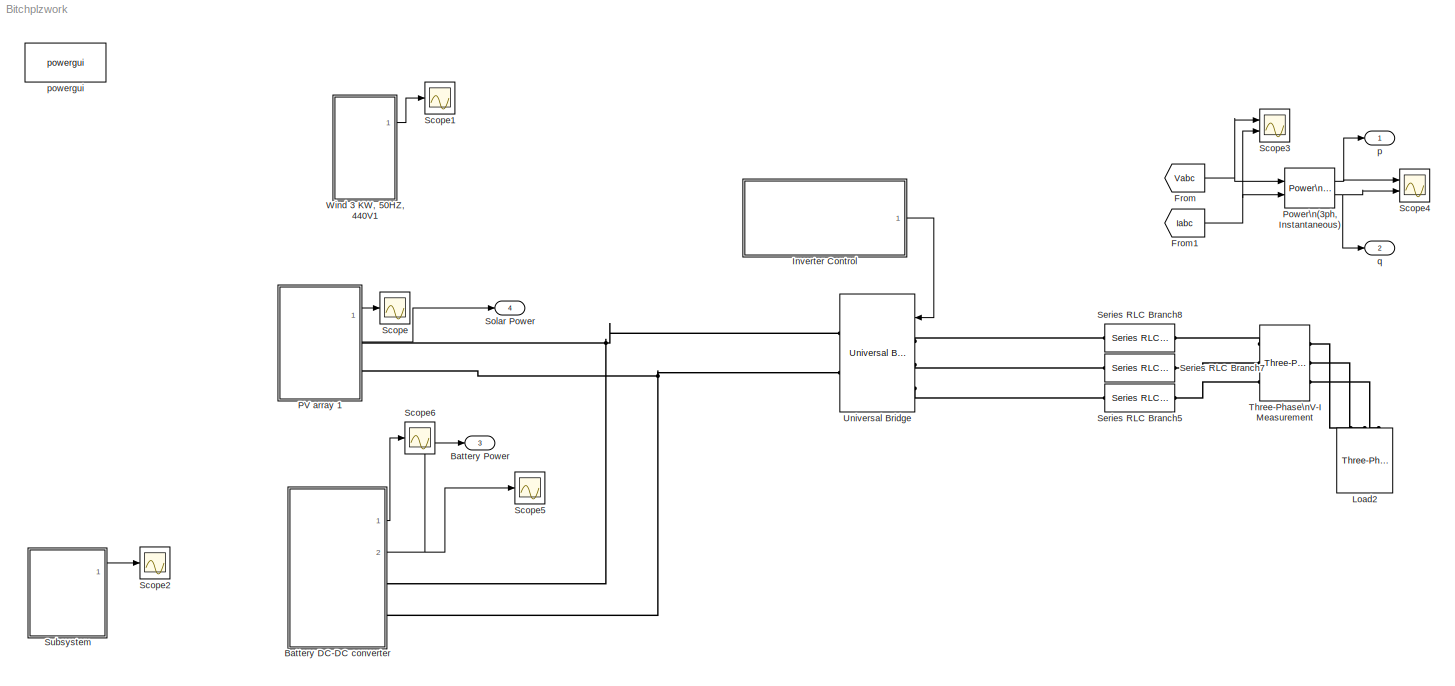
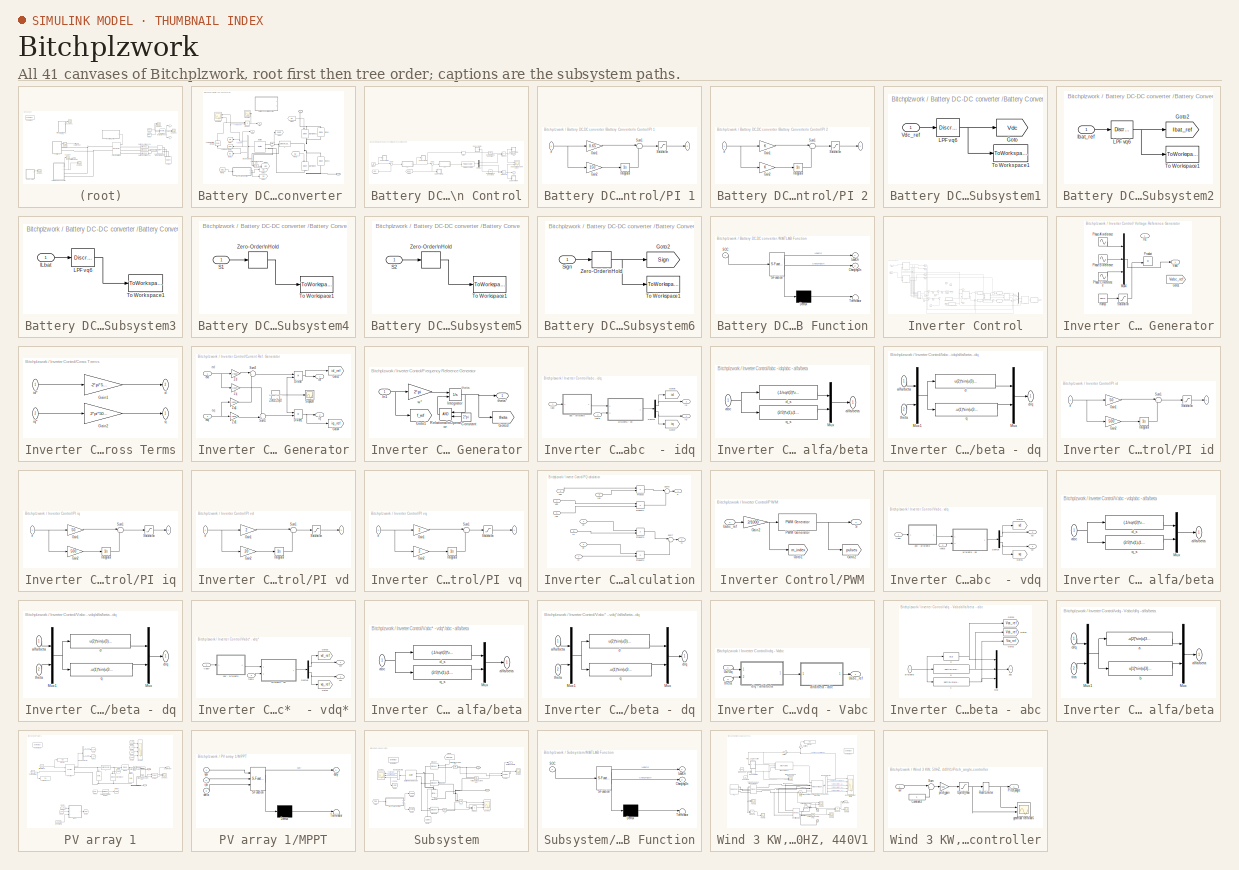
[diagram: thumbnail index - all 41 canvases of the model, root first then tree order]
MODEL Bitchplzwork
KIND model
BLOCK [SubSystem] Battery DC-DC converter 
  Ports = [0, 2, 0, 0, 0, 0, 2]
  RequestExecContextInheritance = off
  SID = 185
BLOCK [PMIOPort] Battery DC-DC converter /+
  SID = 267
  Side = Right
BLOCK [PMIOPort] Battery DC-DC converter /-
  Port = 2
  SID = 268
  Side = Right
BLOCK [Reference] Battery DC-DC converter /Analog\nFilter Design  REF=dsparch4/Analog\nFilter Design
  N = 8
  Ports = [1, 1]
  Rp = 2
  Rs = 40
  SID = 186
  SourceBlock = dsparch4/Analog\nFilter Design
  SourceProductBaseCode = DS
  SourceProductName = DSP System Toolbox
  SourceType = Analog Filter Design
  Whi = 80
  Wlo = 30
  filttype = Lowpass
  method = Butterworth
BLOCK [Reference] Battery DC-DC converter /Battery  REF=electricdrivelib/Extra Sources/Battery
  BatType = Lead-Acid
  Batt_Tr = 30
  Char_age = [2.3478, 3]
  Dis_age = [2.3478, 10]
  Dis_rate = 100
  Dp = 0
  FullV = 272.2039
  FullV2 = 7.1
  MaxQ = 520.8333
  MaxQ2 = 4.8
  MinV = 187.5
  N1 = 1500
  N2 = 10500
  N3 = 1000
  N4 = 1400
  N5 = 950
  Neq0 = 0
  NomQ = 500
  NomT = 20
  NomV = 250
  Normal_OP = 155.1389
  Normal_OP2 = 5.655
  Ports = [0, 1, 0, 0, 0, 2]
  PresetModel = on
  Qeol = 5.4*0.9
  R = 0.005
  Rca = 0.6
  Reol = 0.013333*1.2
  SID = 187
  SOC = 80
  ShowAgeParam = off
  ShowTempParam = off
  SourceBlock = electricdrivelib/Extra Sources/Battery
  SourceProductBaseCode = PS
  SourceProductName = Simscape Electrical
  SourceType = Battery
  T2 = -30
  Ta1 = 25
  Ta2 = 45
  Tci = 20
  ThermalPreset = no
  Tsim = 1e6
  Units = Time
  current = [6.5 13 32.5]
  expZone = [254.523      1.666667]
  expZone2 = [6.58           1]
  ti = 2000
BLOCK [SubSystem] Battery DC-DC converter /Battery Converter\n Control
  Ports = [0, 2]
  RequestExecContextInheritance = off
  SID = 188
BLOCK [Reference] Battery DC-DC converter /Battery Converter\n Control/Compare\nTo Constant  REF=simulink/Logic and Bit\nOperations/Compare\nTo Constant
  OutDataTypeStr = uint8
  Ports = [1, 1]
  SID = 189
  SourceBlock = simulink/Logic and Bit\nOperations/Compare\nTo Constant
  SourceProductBaseCode = SL
  SourceProductName = Simulink
  SourceType = Compare To Constant
  ZeroCross = on
  const = 1
  relop = ==
BLOCK [Reference] Battery DC-DC converter /Battery Converter\n Control/Compare\nTo Constant1  REF=simulink/Logic and Bit\nOperations/Compare\nTo Constant
  OutDataTypeStr = uint8
  Ports = [1, 1]
  SID = 190
  SourceBlock = simulink/Logic and Bit\nOperations/Compare\nTo Constant
  SourceProductBaseCode = SL
  SourceProductName = Simulink
  SourceType = Compare To Constant
  ZeroCross = on
  const = -1
  relop = ==
BLOCK [Scope] Battery DC-DC converter /Battery Converter\n Control/DC Bus Measurements4
  Floating = off
  NumInputPorts = 2
  Ports = [2]
  SID = 191
  ScopeSpecificationString = C++SS(StrPVP('Location','[6, 48, 1372, 727]'),StrPVP('Open','off'),StrPVP('ZoomMode','xonly'),MxPVP('AxesTitles',53,'struct(''axes1'',''Phase to Ground Load Voltages, Vabc (V)'',''axes2'',''Load Currents, Iabc (A)'')'),MxPVP('ScopeGraphics',56,'struct(''FigureColor'',''[0.5 0.5 0.5]'',''AxesColor'',''[0 0 0]'',''AxesTickColor'',''[1 1 1]'',''LineColors'',''[1 1 0;1 0 1;0 1 1;1 0 0;0 1 0;0 0 1]'','...<+436ch>
BLOCK [Demux] Battery DC-DC converter /Battery Converter\n Control/Demux
  DisplayOption = bar
  Outputs = 2
  Ports = [1, 2]
  SID = 192
BLOCK [From] Battery DC-DC converter /Battery Converter\n Control/From1
  GotoTag = Vdc
  SID = 193
  TagVisibility = global
BLOCK [From] Battery DC-DC converter /Battery Converter\n Control/From2
  GotoTag = ILbat
  SID = 194
  TagVisibility = global
BLOCK [SubSystem] Battery DC-DC converter /Battery Converter\n Control/PI 1
  Ports = [1, 1]
  RequestExecContextInheritance = off
  SID = 195
BLOCK [Outport] Battery DC-DC converter /Battery Converter\n Control/PI 1/ 
  IconDisplay = Port number
  SID = 202
BLOCK [Gain] Battery DC-DC converter /Battery Converter\n Control/PI 1/Gain1
  Gain = 0.65
  OutDataTypeStr = Inherit: Inherit via internal rule
  ParamDataTypeStr = Inherit: Inherit via internal rule
  SID = 197
  SaturateOnIntegerOverflow = off
BLOCK [Gain] Battery DC-DC converter /Battery Converter\n Control/PI 1/Gain2
  Gain = 150
  OutDataTypeStr = Inherit: Inherit via internal rule
  ParamDataTypeStr = Inherit: Inherit via internal rule
  SID = 198
  SaturateOnIntegerOverflow = off
BLOCK [Integrator] Battery DC-DC converter /Battery Converter\n Control/PI 1/Integrator
  Ports = [1, 1]
  SID = 199
BLOCK [Saturate] Battery DC-DC converter /Battery Converter\n Control/PI 1/Saturation
  InputPortMap = u0
  LowerLimit = -100
  Ports = [1, 1]
  SID = 200
  UpperLimit = 500
BLOCK [Sum] Battery DC-DC converter /Battery Converter\n Control/PI 1/Sum1
  IconShape = round
  InputSameDT = off
  Inputs = |++
  OutDataTypeStr = Inherit: Inherit via internal rule
  Ports = [2, 1]
  SID = 201
  SaturateOnIntegerOverflow = off
BLOCK [Inport] Battery DC-DC converter /Battery Converter\n Control/PI 1/e
  IconDisplay = Port number
  SID = 196
BLOCK [SubSystem] Battery DC-DC converter /Battery Converter\n Control/PI 2
  Ports = [1, 1]
  RequestExecContextInheritance = off
  SID = 203
BLOCK [Outport] Battery DC-DC converter /Battery Converter\n Control/PI 2/ 
  IconDisplay = Port number
  SID = 210
BLOCK [Gain] Battery DC-DC converter /Battery Converter\n Control/PI 2/Gain1
  OutDataTypeStr = Inherit: Inherit via internal rule
  ParamDataTypeStr = Inherit: Inherit via internal rule
  SID = 205
  SaturateOnIntegerOverflow = off
BLOCK [Gain] Battery DC-DC converter /Battery Converter\n Control/PI 2/Gain2
  OutDataTypeStr = Inherit: Inherit via internal rule
  ParamDataTypeStr = Inherit: Inherit via internal rule
  SID = 206
  SaturateOnIntegerOverflow = off
BLOCK [Integrator] Battery DC-DC converter /Battery Converter\n Control/PI 2/Integrator
  Ports = [1, 1]
  SID = 207
BLOCK [Saturate] Battery DC-DC converter /Battery Converter\n Control/PI 2/Saturation
  InputPortMap = u0
  LowerLimit = -1
  Ports = [1, 1]
  SID = 208
  UpperLimit = 1
BLOCK [Sum] Battery DC-DC converter /Battery Converter\n Control/PI 2/Sum1
  IconShape = round
  InputSameDT = off
  Inputs = |++
  OutDataTypeStr = Inherit: Inherit via internal rule
  Ports = [2, 1]
  SID = 209
  SaturateOnIntegerOverflow = off
BLOCK [Inport] Battery DC-DC converter /Battery Converter\n Control/PI 2/e
  IconDisplay = Port number
  SID = 204
BLOCK [Reference] Battery DC-DC converter /Battery Converter\n Control/PWM Generator2  REF=powerlib_extras/Control \nBlocks/PWM Generator
  Fc = 10000
  Freq = 0
  GeneratorMode = 1-arm  bridge (2 pulses)
  Internal = off
  Phase = 0
  Ports = [1, 1]
  SID = 211
  SourceBlock = powerlib_extras/Control \nBlocks/PWM Generator
  SourceProductBaseCode = PS
  SourceProductName = Simscape Electrical
  SourceType = PWM Generator
  mIndex = 0.2
BLOCK [Product] Battery DC-DC converter /Battery Converter\n Control/Product
  InputSameDT = off
  OutDataTypeStr = Inherit: Inherit via internal rule
  Ports = [2, 1]
  SID = 212
  SaturateOnIntegerOverflow = off
BLOCK [Product] Battery DC-DC converter /Battery Converter\n Control/Product1
  InputSameDT = off
  OutDataTypeStr = Inherit: Inherit via internal rule
  Ports = [2, 1]
  SID = 213
  SaturateOnIntegerOverflow = off
BLOCK [Outport] Battery DC-DC converter /Battery Converter\n Control/S1
  IconDisplay = Port number
  SID = 245
BLOCK [Outport] Battery DC-DC converter /Battery Converter\n Control/S2
  IconDisplay = Port number
  Port = 2
  SID = 246
BLOCK [Signum] Battery DC-DC converter /Battery Converter\n Control/Sign
  SID = 214
  SampleTime = 5e-6
BLOCK [Step] Battery DC-DC converter /Battery Converter\n Control/Step1
  After = 1000
  SID = 215
  SampleTime = 0
  Time = 0
BLOCK [SubSystem] Battery DC-DC converter /Battery Converter\n Control/Subsystem1
  Ports = [1]
  RequestExecContextInheritance = off
  SID = 216
BLOCK [Goto] Battery DC-DC converter /Battery Converter\n Control/Subsystem1/Goto
  GotoTag = Vdc
  SID = 218
BLOCK [Reference] Battery DC-DC converter /Battery Converter\n Control/Subsystem1/LPF vq6  REF=powerlib_extras/Discrete \nControl Blocks/Discrete\n1st-Order\nFilter
  FilterType = Lowpass
  Initialize = off
  PlotResponse = off
  Ports = [1, 1]
  SID = 219
  SourceBlock = powerlib_extras/Discrete \nControl Blocks/Discrete\n1st-Order\nFilter
  SourceProductBaseCode = PS
  SourceProductName = Simscape Electrical
  SourceType = Discrete 1st-Order Filter
  Tc = 10e-3
  Ts = Tss
  Vac_Init = [0.8 -25 50]
  Vdc_Init = 0
  param1 = [1 100 0.1]
BLOCK [ToWorkspace] Battery DC-DC converter /Battery Converter\n Control/Subsystem1/To Workspace1
  MaxDataPoints = inf
  Ports = [1]
  SID = 220
  SampleTime = -1
  VariableName = Vdc_ref
BLOCK [Inport] Battery DC-DC converter /Battery Converter\n Control/Subsystem1/Vdc_ref
  IconDisplay = Port number
  SID = 217
BLOCK [SubSystem] Battery DC-DC converter /Battery Converter\n Control/Subsystem2
  Ports = [1]
  RequestExecContextInheritance = off
  SID = 221
BLOCK [Goto] Battery DC-DC converter /Battery Converter\n Control/Subsystem2/Goto2
  GotoTag = Ibat_ref
  SID = 223
  TagVisibility = global
BLOCK [Inport] Battery DC-DC converter /Battery Converter\n Control/Subsystem2/Ibat_ref
  IconDisplay = Port number
  SID = 222
BLOCK [Reference] Battery DC-DC converter /Battery Converter\n Control/Subsystem2/LPF vq6  REF=powerlib_extras/Discrete \nControl Blocks/Discrete\n1st-Order\nFilter
  FilterType = Lowpass
  Initialize = off
  PlotResponse = off
  Ports = [1, 1]
  SID = 224
  SourceBlock = powerlib_extras/Discrete \nControl Blocks/Discrete\n1st-Order\nFilter
  SourceProductBaseCode = PS
  SourceProductName = Simscape Electrical
  SourceType = Discrete 1st-Order Filter
  Tc = 10e-3
  Ts = Tss
  Vac_Init = [0.8 -25 50]
  Vdc_Init = 0
  param1 = [1 100 0.1]
BLOCK [ToWorkspace] Battery DC-DC converter /Battery Converter\n Control/Subsystem2/To Workspace1
  MaxDataPoints = inf
  Ports = [1]
  SID = 225
  SampleTime = -1
  VariableName = Ibat_ref
BLOCK [SubSystem] Battery DC-DC converter /Battery Converter\n Control/Subsystem3
  Ports = [1]
  RequestExecContextInheritance = off
  SID = 226
BLOCK [Inport] Battery DC-DC converter /Battery Converter\n Control/Subsystem3/ILbat
  IconDisplay = Port number
  SID = 227
BLOCK [Reference] Battery DC-DC converter /Battery Converter\n Control/Subsystem3/LPF vq6  REF=powerlib_extras/Discrete \nControl Blocks/Discrete\n1st-Order\nFilter
  FilterType = Lowpass
  Initialize = off
  PlotResponse = off
  Ports = [1, 1]
  SID = 228
  SourceBlock = powerlib_extras/Discrete \nControl Blocks/Discrete\n1st-Order\nFilter
  SourceProductBaseCode = PS
  SourceProductName = Simscape Electrical
  SourceType = Discrete 1st-Order Filter
  Tc = 10e-3
  Ts = Tss
  Vac_Init = [0.8 -25 50]
  Vdc_Init = 0
  param1 = [1 100 0.1]
BLOCK [ToWorkspace] Battery DC-DC converter /Battery Converter\n Control/Subsystem3/To Workspace1
  MaxDataPoints = inf
  Ports = [1]
  SID = 229
  SampleTime = -1
  VariableName = ILbat
BLOCK [SubSystem] Battery DC-DC converter /Battery Converter\n Control/Subsystem4
  Ports = [1]
  RequestExecContextInheritance = off
  SID = 230
BLOCK [Inport] Battery DC-DC converter /Battery Converter\n Control/Subsystem4/S1
  IconDisplay = Port number
  SID = 231
BLOCK [ToWorkspace] Battery DC-DC converter /Battery Converter\n Control/Subsystem4/To Workspace1
  MaxDataPoints = inf
  Ports = [1]
  SID = 232
  SampleTime = -1
  VariableName = S1
BLOCK [ZeroOrderHold] Battery DC-DC converter /Battery Converter\n Control/Subsystem4/Zero-Order\nHold
  SID = 233
  SampleTime = Tss
BLOCK [SubSystem] Battery DC-DC converter /Battery Converter\n Control/Subsystem5
  Ports = [1]
  RequestExecContextInheritance = off
  SID = 234
BLOCK [Inport] Battery DC-DC converter /Battery Converter\n Control/Subsystem5/S2
  IconDisplay = Port number
  SID = 235
BLOCK [ToWorkspace] Battery DC-DC converter /Battery Converter\n Control/Subsystem5/To Workspace1
  MaxDataPoints = inf
  Ports = [1]
  SID = 236
  SampleTime = -1
  VariableName = S2
BLOCK [ZeroOrderHold] Battery DC-DC converter /Battery Converter\n Control/Subsystem5/Zero-Order\nHold
  SID = 237
  SampleTime = Tss
BLOCK [SubSystem] Battery DC-DC converter /Battery Converter\n Control/Subsystem6
  Ports = [1]
  RequestExecContextInheritance = off
  SID = 238
BLOCK [Goto] Battery DC-DC converter /Battery Converter\n Control/Subsystem6/Goto2
  GotoTag = Sign
  SID = 240
  TagVisibility = global
BLOCK [Inport] Battery DC-DC converter /Battery Converter\n Control/Subsystem6/Sign
  IconDisplay = Port number
  SID = 239
BLOCK [ToWorkspace] Battery DC-DC converter /Battery Converter\n Control/Subsystem6/To Workspace1
  MaxDataPoints = inf
  Ports = [1]
  SID = 241
  SampleTime = -1
  VariableName = Sign
BLOCK [ZeroOrderHold] Battery DC-DC converter /Battery Converter\n Control/Subsystem6/Zero-Order\nHold
  SID = 242
  SampleTime = Tss
BLOCK [Sum] Battery DC-DC converter /Battery Converter\n Control/Sum1
  IconShape = round
  InputSameDT = off
  Inputs = |+-
  OutDataTypeStr = Inherit: Inherit via internal rule
  Ports = [2, 1]
  SID = 243
  SaturateOnIntegerOverflow = off
BLOCK [Sum] Battery DC-DC converter /Battery Converter\n Control/Sum3
  IconShape = round
  InputSameDT = off
  Inputs = |+-
  OutDataTypeStr = Inherit: Inherit via internal rule
  Ports = [2, 1]
  SID = 244
  SaturateOnIntegerOverflow = off
BLOCK [Outport] Battery DC-DC converter /Bp
  IconDisplay = Port number
  Port = 2
  SID = 270
BLOCK [BusSelector] Battery DC-DC converter /Bus\nSelector
  OutputAsBus = off
  OutputSignals = Voltage (V),SOC (%),Current (A)
  Ports = [1, 3]
  SID = 247
BLOCK [Reference] Battery DC-DC converter /Diode  REF=powerlib/Power\nElectronics/Diode
  Cs = 250e-9
  IC = 0
  Lon = 0
  Measurements = off
  Ports = [0, 0, 0, 0, 0, 1, 1]
  Ron = 0.001
  Rs = 500
  SID = 248
  SourceBlock = powerlib/Power\nElectronics/Diode
  SourceProductBaseCode = PS
  SourceProductName = Simscape Electrical
  SourceType = Diode
  UseSnubber = 0
  Vf = 0.8
BLOCK [Reference] Battery DC-DC converter /Diode1  REF=powerlib/Power\nElectronics/Diode
  Cs = 250e-9
  IC = 0
  Lon = 0
  Measurements = off
  Ports = [0, 0, 0, 0, 0, 1, 1]
  Ron = 0.001
  Rs = 500
  SID = 249
  SourceBlock = powerlib/Power\nElectronics/Diode
  SourceProductBaseCode = PS
  SourceProductName = Simscape Electrical
  SourceType = Diode
  UseSnubber = 0
  Vf = 0.8
BLOCK [From] Battery DC-DC converter /From
  GotoTag = S1
  SID = 250
  TagVisibility = global
BLOCK [From] Battery DC-DC converter /From1
  GotoTag = S2
  SID = 251
  TagVisibility = global
BLOCK [From] Battery DC-DC converter /From2
  GotoTag = SOC
  SID = 515
BLOCK [Goto] Battery DC-DC converter /Goto
  GotoTag = VB
  SID = 252
BLOCK [Goto] Battery DC-DC converter /Goto1
  GotoTag = SOC
  SID = 253
BLOCK [Goto] Battery DC-DC converter /Goto2
  GotoTag = IB
  SID = 254
BLOCK [Goto] Battery DC-DC converter /Goto3
  GotoTag = S1
  SID = 255
  TagVisibility = global
BLOCK [Goto] Battery DC-DC converter /Goto4
  GotoTag = S2
  SID = 256
  TagVisibility = global
BLOCK [Goto] Battery DC-DC converter /Goto5
  GotoTag = ILbat
  SID = 257
  TagVisibility = global
BLOCK [Goto] Battery DC-DC converter /Goto6
  GotoTag = Vdc
  SID = 258
  TagVisibility = global
BLOCK [Reference] Battery DC-DC converter /IGBT//Diode  REF=powerlib/Power\nElectronics/IGBT//Diode
  Cs = inf
  Measurements = on
  Ports = [1, 1, 0, 0, 0, 1, 1]
  Ron = 1e-3
  Rs = 1e5
  SID = 259
  SourceBlock = powerlib/Power\nElectronics/IGBT//Diode
  SourceProductBaseCode = PS
  SourceProductName = Simscape Electrical
  SourceType = IGBT/Diode
BLOCK [Reference] Battery DC-DC converter /IGBT//Diode1  REF=powerlib/Power\nElectronics/IGBT//Diode
  Cs = inf
  Measurements = on
  Ports = [1, 1, 0, 0, 0, 1, 1]
  Ron = 1e-3
  Rs = 1e5
  SID = 260
  SourceBlock = powerlib/Power\nElectronics/IGBT//Diode
  SourceProductBaseCode = PS
  SourceProductName = Simscape Electrical
  SourceType = IGBT/Diode
BLOCK [Reference] Battery DC-DC converter /IL6  REF=powerlib/Measurements/Current Measurement
  OutputType = Complex
  PSBequivalent = 0
  PhasorSimulation = off
  Ports = [0, 1, 0, 0, 0, 1, 1]
  SID = 261
  SourceBlock = powerlib/Measurements/Current Measurement
  SourceProductBaseCode = PS
  SourceProductName = Simscape Electrical
  SourceType = Current Measurement
  UserDataPersistent = on
BLOCK [Reference] Battery DC-DC converter /L  REF=powerlib/Elements/Series RLC Branch
  BranchType = L
  Capacitance = 1e-6
  Inductance = 1e-3
  InitialCurrent = 0
  InitialVoltage = 0
  LConnTagsString = __new0
  Measurements = None
  Ports = [0, 0, 0, 0, 0, 1, 1]
  RConnTagsString = __new0
  Resistance = 0.1
  SID = 262
  SetiL0 = off
  Setx0 = off
  SourceBlock = powerlib/Elements/Series RLC Branch
  SourceProductBaseCode = PS
  SourceProductName = Simscape Electrical
  SourceType = Series RLC Branch
BLOCK [SubSystem] Battery DC-DC converter /MATLAB Function
  ErrorFcn = Stateflow.Translate.translate
  PermitHierarchicalResolution = ExplicitOnly
  Ports = [1, 2]
  RequestExecContextInheritance = off
  SFBlockType = MATLAB Function
  SID = 513
  TreatAsAtomicUnit = on
BLOCK [Demux] Battery DC-DC converter /MATLAB Function/ Demux 
  Outputs = 1
  Ports = [1, 1]
  SID = 513::28
BLOCK [S-Function] Battery DC-DC converter /MATLAB Function/ SFunction 
  EnableBusSupport = on
  FunctionName = sf_sfun
  PortCounts = [1 3]
  Ports = [1, 3]
  SFcnIsStateOwnerBlock = off
  SFunctionDeploymentMode = off
  SID = 513::27
  Tag = Stateflow S-Function Bitchplzwork 3
BLOCK [Terminator] Battery DC-DC converter /MATLAB Function/ Terminator 
  SID = 513::29
BLOCK [Outport] Battery DC-DC converter /MATLAB Function/ChargingOn
  IconDisplay = Port number
  Port = 2
  SID = 513::23
BLOCK [Outport] Battery DC-DC converter /MATLAB Function/LoadOn
  IconDisplay = Port number
  SID = 513::5
BLOCK [Inport] Battery DC-DC converter /MATLAB Function/SOC
  IconDisplay = Port number
  SID = 513::1
BLOCK [Product] Battery DC-DC converter /Product
  InputSameDT = off
  OutDataTypeStr = Inherit: Inherit via internal rule
  Ports = [2, 1]
  RndMeth = Floor
  SID = 263
  SaturateOnIntegerOverflow = off
BLOCK [Outport] Battery DC-DC converter /SOC
  IconDisplay = Port number
  SID = 269
BLOCK [Scope] Battery DC-DC converter /Scope1
  Floating = off
  NumInputPorts = 1
  Ports = [1]
  SID = 264
  ScopeSpecificationString = Simulink.scopes.TimeScopeBlockCfg('CurrentConfiguration', extmgr.ConfigurationSet(extmgr.Configuration('Core','General UI',true),extmgr.Configuration('Core','Source UI',true),extmgr.Configuration('Sources','WiredSimulink',true,'DataLoggingVariableName','ScopeData1'),extmgr.Configuration('Visuals','Time Domain',true,'SerializedDisplays',{struct('MinYLimReal','-2.90985','MaxYLimReal','26.18867','YLa...<+2734ch>
BLOCK [Scope] Battery DC-DC converter /Scope5
  Floating = off
  NumInputPorts = 2
  Ports = [2]
  SID = 265
  ScopeSpecificationString = Simulink.scopes.TimeScopeBlockCfg('CurrentConfiguration', extmgr.ConfigurationSet(extmgr.Configuration('Core','General UI',true),extmgr.Configuration('Core','Source UI',true),extmgr.Configuration('Sources','WiredSimulink',true,'DataLoggingVariableName','ScopeData2'),extmgr.Configuration('Visuals','Time Domain',true,'SerializedDisplays',{struct('MinYLimReal','286.967','MaxYLimReal','292.65024','YLa...<+2763ch>
BLOCK [Reference] Battery DC-DC converter /Voltage Measurement  REF=powerlib/Measurements/Voltage Measurement
  OutputType = Complex
  PSBequivalent = 0
  PhasorSimulation = off
  Ports = [0, 1, 0, 0, 0, 2]
  SID = 266
  SourceBlock = powerlib/Measurements/Voltage Measurement
  SourceProductBaseCode = PS
  SourceProductName = Simscape Electrical
  SourceType = Voltage Measurement
  UserDataPersistent = on
BLOCK [Outport] Battery Power
  IconDisplay = Port number
  Port = 3
  SID = 510
BLOCK [From] From
  GotoTag = Vabc
  SID = 276
  TagVisibility = global
BLOCK [From] From1
  GotoTag = Iabc
  SID = 281
  TagVisibility = global
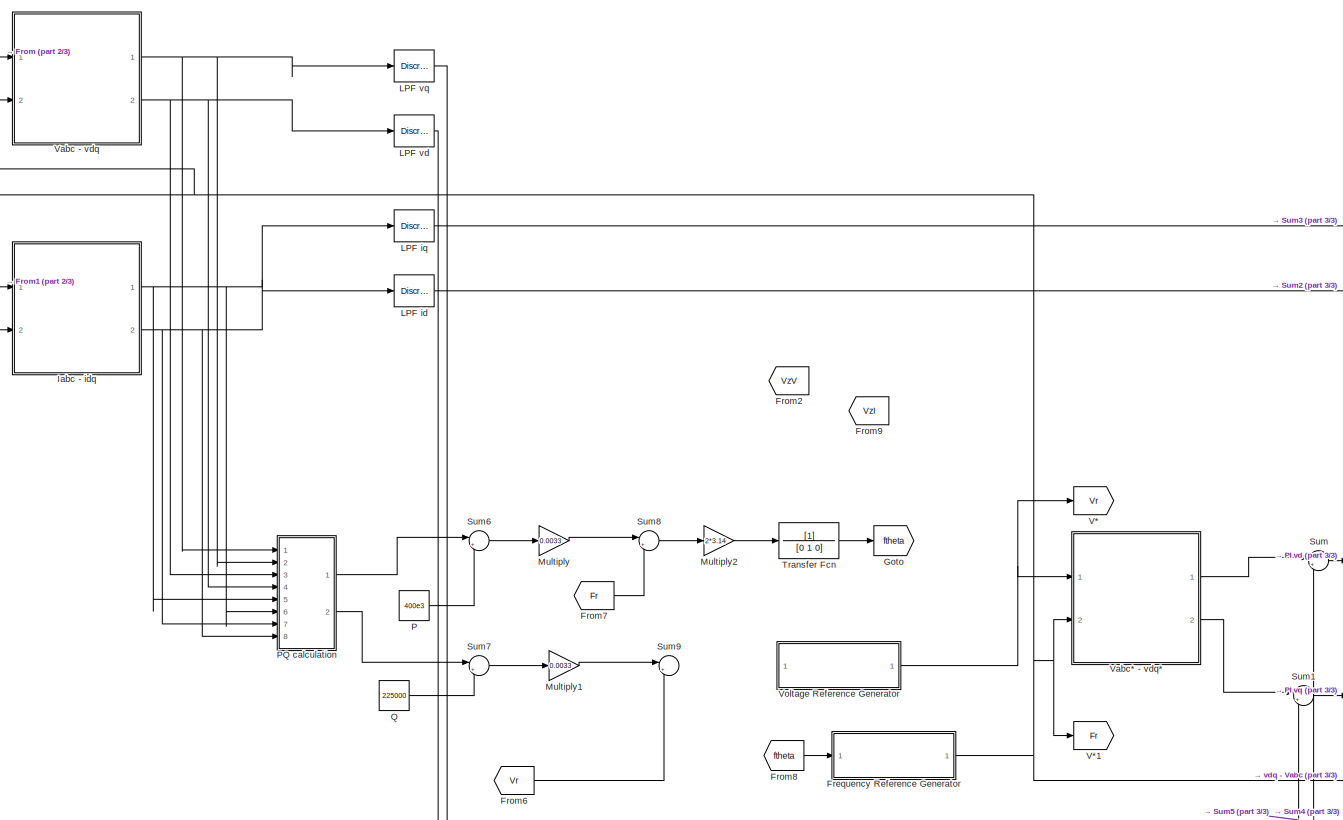
[diagram: Inverter Control - part 1/3, left side, full height]
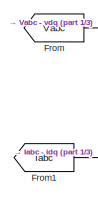
[diagram: Inverter Control - part 2/3, top left region]
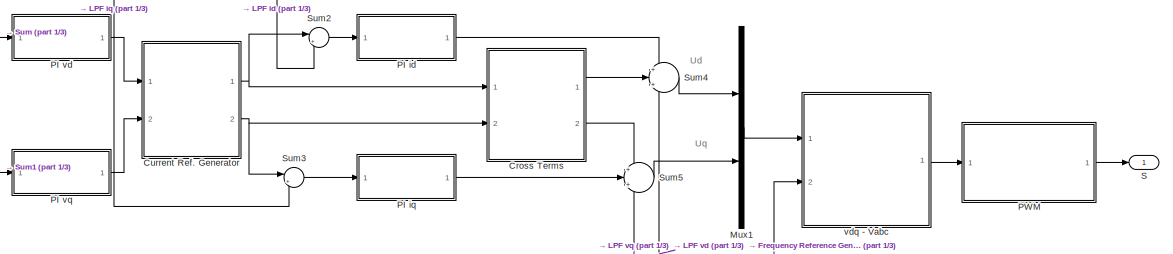
[diagram: Inverter Control - part 3/3, bottom right region]
BLOCK [SubSystem] Inverter Control
  Ports = [0, 1]
  RequestExecContextInheritance = off
  SID = 283
BLOCK [SubSystem] Inverter Control/ Voltage Reference Generator
  Ports = [1, 1]
  RequestExecContextInheritance = off
  SID = 284
BLOCK [Goto] Inverter Control/ Voltage Reference Generator/Goto1
  GotoTag = Vabc_ref
  SID = 286
  TagVisibility = global
BLOCK [Inport] Inverter Control/ Voltage Reference Generator/In1
  IconDisplay = Port number
  SID = 285
BLOCK [Mux] Inverter Control/ Voltage Reference Generator/Mux4
  DisplayOption = bar
  Inputs = 3
  Ports = [3, 1]
  SID = 287
BLOCK [Sin] Inverter Control/ Voltage Reference Generator/Phase A\nreference
  Amplitude = 400*sqrt(2)/sqrt(3)
  Frequency = 2*pi*50
  Ports = [0, 1]
  SID = 288
  SampleTime = 0
BLOCK [Sin] Inverter Control/ Voltage Reference Generator/Phase B\nreference
  Amplitude = 400*sqrt(2)/sqrt(3)
  Frequency = 2*pi*50
  Phase = -2*pi/3
  Ports = [0, 1]
  SID = 289
  SampleTime = 0
BLOCK [Sin] Inverter Control/ Voltage Reference Generator/Phase C\nreference
  Amplitude = 400*sqrt(2)/sqrt(3)
  Frequency = 2*pi*50
  Phase = 2*pi/3
  Ports = [0, 1]
  SID = 290
  SampleTime = 0
BLOCK [Product] Inverter Control/ Voltage Reference Generator/Product
  InputSameDT = off
  OutDataTypeStr = Inherit: Inherit via internal rule
  Ports = [2, 1]
  SID = 291
  SaturateOnIntegerOverflow = off
BLOCK [Reference] Inverter Control/ Voltage Reference Generator/Ramp  REF=simulink/Sources/Ramp
  InitialOutput = 0
  Ports = [0, 1]
  SID = 292
  SourceBlock = simulink/Sources/Ramp
  SourceProductBaseCode = SL
  SourceProductName = Simulink
  SourceType = Ramp
  VectorParams1D = on
  slope = 1/0.3
  start = 0
BLOCK [Saturate] Inverter Control/ Voltage Reference Generator/Saturation
  InputPortMap = u0
  LowerLimit = 0
  Ports = [1, 1]
  SID = 293
  UpperLimit = 1
BLOCK [Outport] Inverter Control/ Voltage Reference Generator/Vabc*
  IconDisplay = Port number
  SID = 294
BLOCK [SubSystem] Inverter Control/Cross Terms
  Ports = [2, 2]
  RequestExecContextInheritance = off
  SID = 295
BLOCK [Outport] Inverter Control/Cross Terms/ d
  IconDisplay = Port number
  Port = 2
  SID = 301
BLOCK [Outport] Inverter Control/Cross Terms/ q
  IconDisplay = Port number
  SID = 300
BLOCK [Gain] Inverter Control/Cross Terms/Gain1
  Gain = -2*pi*50*3e-3
  OutDataTypeStr = Inherit: Inherit via internal rule
  ParamDataTypeStr = Inherit: Inherit via internal rule
  SID = 298
  SaturateOnIntegerOverflow = off
BLOCK [Gain] Inverter Control/Cross Terms/Gain2
  Gain = 2*pi*50*3e-3
  OutDataTypeStr = Inherit: Inherit via internal rule
  ParamDataTypeStr = Inherit: Inherit via internal rule
  SID = 299
  SaturateOnIntegerOverflow = off
BLOCK [Inport] Inverter Control/Cross Terms/id*
  IconDisplay = Port number
  SID = 296
BLOCK [Inport] Inverter Control/Cross Terms/iq*
  IconDisplay = Port number
  Port = 2
  SID = 297
BLOCK [SubSystem] Inverter Control/Current Ref. Generator
  Ports = [2, 2]
  RequestExecContextInheritance = off
  SID = 302
BLOCK [Product] Inverter Control/Current Ref. Generator/Divide
  InputSameDT = off
  Inputs = */
  OutDataTypeStr = Inherit: Inherit via internal rule
  Ports = [2, 1]
  RndMeth = Floor
  SID = 305
  SaturateOnIntegerOverflow = off
BLOCK [Product] Inverter Control/Current Ref. Generator/Divide1
  InputSameDT = off
  Inputs = /*
  OutDataTypeStr = Inherit: Inherit via internal rule
  Ports = [2, 1]
  RndMeth = Floor
  SID = 306
  SaturateOnIntegerOverflow = off
BLOCK [Goto] Inverter Control/Current Ref. Generator/Goto1
  GotoTag = id_ref
  SID = 307
  TagVisibility = global
BLOCK [Goto] Inverter Control/Current Ref. Generator/Goto4
  GotoTag = iq_ref
  SID = 308
  TagVisibility = global
BLOCK [Scope] Inverter Control/Current Ref. Generator/Scope24
  Floating = off
  NumInputPorts = 1
  Ports = [1]
  SID = 309
  ScopeSpecificationString = C++SS(StrPVP('Location','[463, 149, 1247, 945]'),StrPVP('Open','off'),StrPVP('ZoomMode','yonly'),MxPVP('AxesTitles',53,'struct(''axes1'',''Icons / I   inversor'')'),StrPVP('ShowLegends','off'),StrPVP('TimeRange','0.09'),StrPVP('YMin','0.699626'),StrPVP('YMax','0.699626'),StrPVP('SaveName','ScopeData53'),StrPVP('DataFormat','StructureWithTime'),StrPVP('LimitDataPoints','off'),StrPVP('BlockParamSamp...<+76ch>
BLOCK [Sum] Inverter Control/Current Ref. Generator/Sum1
  IconShape = round
  InputSameDT = off
  Inputs = -+|
  OutDataTypeStr = Inherit: Inherit via internal rule
  Ports = [2, 1]
  SID = 310
  SaturateOnIntegerOverflow = off
BLOCK [Sum] Inverter Control/Current Ref. Generator/Sum3
  IconShape = round
  InputSameDT = off
  Inputs = |++
  OutDataTypeStr = Inherit: Inherit via internal rule
  Ports = [2, 1]
  SID = 311
  SaturateOnIntegerOverflow = off
BLOCK [Gain] Inverter Control/Current Ref. Generator/Zd
  Gain = 0.4559
  OutDataTypeStr = Inherit: Inherit via internal rule
  ParamDataTypeStr = Inherit: Inherit via internal rule
  SID = 312
  SaturateOnIntegerOverflow = off
BLOCK [Gain] Inverter Control/Current Ref. Generator/Zd1
  Gain = 0.4559
  OutDataTypeStr = Inherit: Inherit via internal rule
  ParamDataTypeStr = Inherit: Inherit via internal rule
  SID = 313
  SaturateOnIntegerOverflow = off
BLOCK [Constant] Inverter Control/Current Ref. Generator/Zd^2+Zq^2
  SID = 314
  Value = 0.4559^2+0.1824^2
BLOCK [Gain] Inverter Control/Current Ref. Generator/Zq
  Gain = 0.1824
  OutDataTypeStr = Inherit: Inherit via internal rule
  ParamDataTypeStr = Inherit: Inherit via internal rule
  SID = 315
  SaturateOnIntegerOverflow = off
BLOCK [Gain] Inverter Control/Current Ref. Generator/Zq1
  Gain = 0.1824
  OutDataTypeStr = Inherit: Inherit via internal rule
  ParamDataTypeStr = Inherit: Inherit via internal rule
  SID = 316
  SaturateOnIntegerOverflow = off
BLOCK [Inport] Inverter Control/Current Ref. Generator/evd
  IconDisplay = Port number
  SID = 303
BLOCK [Inport] Inverter Control/Current Ref. Generator/evq
  IconDisplay = Port number
  Port = 2
  SID = 304
BLOCK [Outport] Inverter Control/Current Ref. Generator/id*
  IconDisplay = Port number
  SID = 317
BLOCK [Outport] Inverter Control/Current Ref. Generator/iq*
  IconDisplay = Port number
  Port = 2
  SID = 318
BLOCK [SubSystem] Inverter Control/Frequency Reference Generator
  Ports = [1, 1]
  RequestExecContextInheritance = off
  SID = 321
BLOCK [Constant] Inverter Control/Frequency Reference Generator/Constant
  SID = 323
  Value = 2*pi
BLOCK [Goto] Inverter Control/Frequency Reference Generator/Goto1
  GotoTag = f_ref
  SID = 324
  TagVisibility = global
BLOCK [Goto] Inverter Control/Frequency Reference Generator/Goto3
  GotoTag = theta
  SID = 325
  TagVisibility = global
BLOCK [Inport] Inverter Control/Frequency Reference Generator/In1
  IconDisplay = Port number
  SID = 322
BLOCK [Integrator] Inverter Control/Frequency Reference Generator/Integrator
  ExternalReset = rising
  Ports = [2, 1]
  SID = 326
BLOCK [RelationalOperator] Inverter Control/Frequency Reference Generator/Relational\nOperator
  InputSameDT = off
  OutDataTypeStr = boolean
  Ports = [2, 1]
  SID = 327
BLOCK [Outport] Inverter Control/Frequency Reference Generator/theta*
  IconDisplay = Port number
  SID = 329
BLOCK [Gain] Inverter Control/Frequency Reference Generator/w*
  Gain = 2*pi
  OutDataTypeStr = Inherit: Inherit via internal rule
  ParamDataTypeStr = Inherit: Inherit via internal rule
  SID = 328
  SaturateOnIntegerOverflow = off
BLOCK [From] Inverter Control/From
  GotoTag = Vabc
  SID = 331
  TagVisibility = global
BLOCK [From] Inverter Control/From1
  GotoTag = Iabc
  SID = 332
  TagVisibility = global
BLOCK [From] Inverter Control/From2
  GotoTag = VzV
  SID = 333
BLOCK [From] Inverter Control/From6
  GotoTag = Vr
  SID = 334
BLOCK [From] Inverter Control/From7
  GotoTag = Fr
  SID = 335
BLOCK [From] Inverter Control/From8
  GotoTag = ftheta
  SID = 336
BLOCK [From] Inverter Control/From9
  GotoTag = VzI
  SID = 337
BLOCK [Goto] Inverter Control/Goto
  GotoTag = ftheta
  SID = 338
BLOCK [SubSystem] Inverter Control/Iabc  - idq
  Ports = [2, 2]
  RequestExecContextInheritance = off
  SID = 339
BLOCK [Demux] Inverter Control/Iabc  - idq/Demux
  DisplayOption = bar
  Outputs = 2
  Ports = [1, 2]
  SID = 342
BLOCK [Goto] Inverter Control/Iabc  - idq/Goto6
  GotoTag = id
  SID = 343
  TagVisibility = global
BLOCK [Goto] Inverter Control/Iabc  - idq/Goto7
  GotoTag = iq
  SID = 344
  TagVisibility = global
BLOCK [Inport] Inverter Control/Iabc  - idq/Iabc
  IconDisplay = Port number
  SID = 340
BLOCK [SubSystem] Inverter Control/Iabc  - idq/abc  - alfa//beta
  Ports = [1, 1]
  RequestExecContextInheritance = off
  SID = 345
BLOCK [Mux] Inverter Control/Iabc  - idq/abc  - alfa//beta/Mux
  DisplayOption = bar
  Inputs = 2
  Ports = [2, 1]
  SID = 347
BLOCK [Inport] Inverter Control/Iabc  - idq/abc  - alfa//beta/abc
  IconDisplay = Port number
  SID = 346
BLOCK [Outport] Inverter Control/Iabc  - idq/abc  - alfa//beta/alfa//beta
  IconDisplay = Port number
  SID = 350
BLOCK [Fcn] Inverter Control/Iabc  - idq/abc  - alfa//beta/d_s
  Expr = (-1/sqrt(3)*u(2))+(1/sqrt(3)*u(3))
  SID = 348
BLOCK [Fcn] Inverter Control/Iabc  - idq/abc  - alfa//beta/q_s
  Expr = (2/3)*u(1)-(1/3)*u(2)-(1/3)*u(3)
  SID = 349
BLOCK [SubSystem] Inverter Control/Iabc  - idq/alfa//beta - dq
  Ports = [2, 1]
  RequestExecContextInheritance = off
  SID = 351
BLOCK [Mux] Inverter Control/Iabc  - idq/alfa//beta - dq/Mux
  DisplayOption = bar
  Inputs = 2
  Ports = [2, 1]
  SID = 354
BLOCK [Mux] Inverter Control/Iabc  - idq/alfa//beta - dq/Mux1
  DisplayOption = bar
  Inputs = 2
  Ports = [2, 1]
  SID = 355
BLOCK [Inport] Inverter Control/Iabc  - idq/alfa//beta - dq/alfa//beta
  IconDisplay = Port number
  SID = 352
BLOCK [Fcn] Inverter Control/Iabc  - idq/alfa//beta - dq/d
  Expr = u(2)*sin(u(3)) + u(1)*cos(u(3))
  SID = 356
BLOCK [Outport] Inverter Control/Iabc  - idq/alfa//beta - dq/d//q
  IconDisplay = Port number
  SID = 358
BLOCK [Fcn] Inverter Control/Iabc  - idq/alfa//beta - dq/q
  Expr = -u(1)*sin(u(3)) + u(2)*cos(u(3))
  SID = 357
BLOCK [Inport] Inverter Control/Iabc  - idq/alfa//beta - dq/theta
  IconDisplay = Port number
  Port = 2
  SID = 353
BLOCK [Outport] Inverter Control/Iabc  - idq/id
  IconDisplay = Port number
  Port = 2
  SID = 360
BLOCK [Outport] Inverter Control/Iabc  - idq/iq
  IconDisplay = Port number
  SID = 359
BLOCK [Inport] Inverter Control/Iabc  - idq/theta
  IconDisplay = Port number
  Port = 2
  SID = 341
BLOCK [Reference] Inverter Control/LPF id  REF=powerlib_extras/Discrete \nControl Blocks/Discrete\n1st-Order\nFilter
  FilterType = Lowpass
  Initialize = off
  PlotResponse = off
  Ports = [1, 1]
  SID = 361
  SourceBlock = powerlib_extras/Discrete \nControl Blocks/Discrete\n1st-Order\nFilter
  SourceProductBaseCode = PS
  SourceProductName = Simscape Electrical
  SourceType = Discrete 1st-Order Filter
  Tc = 1e-3
  Ts = 5e-6
  Vac_Init = [0.8 -25 60]
  Vdc_Init = 0
  param1 = [1 100 0.1]
BLOCK [Reference] Inverter Control/LPF iq  REF=powerlib_extras/Discrete \nControl Blocks/Discrete\n1st-Order\nFilter
  FilterType = Lowpass
  Initialize = off
  PlotResponse = off
  Ports = [1, 1]
  SID = 362
  SourceBlock = powerlib_extras/Discrete \nControl Blocks/Discrete\n1st-Order\nFilter
  SourceProductBaseCode = PS
  SourceProductName = Simscape Electrical
  SourceType = Discrete 1st-Order Filter
  Tc = 1e-3
  Ts = 5e-6
  Vac_Init = [0.8 -25 60]
  Vdc_Init = 0
  param1 = [1 100 0.1]
BLOCK [Reference] Inverter Control/LPF vd  REF=powerlib_extras/Discrete \nControl Blocks/Discrete\n1st-Order\nFilter
  FilterType = Lowpass
  Initialize = off
  PlotResponse = off
  Ports = [1, 1]
  SID = 363
  SourceBlock = powerlib_extras/Discrete \nControl Blocks/Discrete\n1st-Order\nFilter
  SourceProductBaseCode = PS
  SourceProductName = Simscape Electrical
  SourceType = Discrete 1st-Order Filter
  Tc = 10e-3
  Ts = 5e-6
  Vac_Init = [0.8 -25 60]
  Vdc_Init = -0.4
  param1 = [1 100 0.1]
BLOCK [Reference] Inverter Control/LPF vq  REF=powerlib_extras/Discrete \nControl Blocks/Discrete\n1st-Order\nFilter
  FilterType = Lowpass
  Initialize = off
  PlotResponse = off
  Ports = [1, 1]
  SID = 364
  SourceBlock = powerlib_extras/Discrete \nControl Blocks/Discrete\n1st-Order\nFilter
  SourceProductBaseCode = PS
  SourceProductName = Simscape Electrical
  SourceType = Discrete 1st-Order Filter
  Tc = 10e-3
  Ts = 5e-6
  Vac_Init = [0.8 -25 60]
  Vdc_Init = 0
  param1 = [1 100 0.1]
BLOCK [Gain] Inverter Control/Multiply
  Gain = 0.0033
  OutDataTypeStr = Inherit: Inherit via internal rule
  ParamDataTypeStr = Inherit: Inherit via internal rule
  SID = 365
  SaturateOnIntegerOverflow = off
BLOCK [Gain] Inverter Control/Multiply1
  Gain = 0.0033
  OutDataTypeStr = Inherit: Inherit via internal rule
  ParamDataTypeStr = Inherit: Inherit via internal rule
  SID = 366
  SaturateOnIntegerOverflow = off
BLOCK [Gain] Inverter Control/Multiply2
  Gain = 2*3.14
  OutDataTypeStr = Inherit: Inherit via internal rule
  ParamDataTypeStr = Inherit: Inherit via internal rule
  SID = 367
  SaturateOnIntegerOverflow = off
BLOCK [Mux] Inverter Control/Mux1
  DisplayOption = bar
  Inputs = 2
  Ports = [2, 1]
  SID = 368
BLOCK [Constant] Inverter Control/P
  SID = 369
  Value = 400e3
BLOCK [SubSystem] Inverter Control/PI id
  Ports = [1, 1]
  RequestExecContextInheritance = off
  SID = 370
BLOCK [Outport] Inverter Control/PI id/ 
  IconDisplay = Port number
  SID = 377
BLOCK [Gain] Inverter Control/PI id/Gain1
  Gain = 50
  OutDataTypeStr = Inherit: Inherit via internal rule
  ParamDataTypeStr = Inherit: Inherit via internal rule
  SID = 372
  SaturateOnIntegerOverflow = off
BLOCK [Gain] Inverter Control/PI id/Gain2
  Gain = 500
  OutDataTypeStr = Inherit: Inherit via internal rule
  ParamDataTypeStr = Inherit: Inherit via internal rule
  SID = 373
  SaturateOnIntegerOverflow = off
BLOCK [Integrator] Inverter Control/PI id/Integrator
  Ports = [1, 1]
  SID = 374
BLOCK [Saturate] Inverter Control/PI id/Saturation
  InputPortMap = u0
  LowerLimit = -inf
  Ports = [1, 1]
  SID = 375
  UpperLimit = inf
BLOCK [Sum] Inverter Control/PI id/Sum1
  IconShape = round
  InputSameDT = off
  Inputs = |++
  OutDataTypeStr = Inherit: Inherit via internal rule
  Ports = [2, 1]
  SID = 376
  SaturateOnIntegerOverflow = off
BLOCK [Inport] Inverter Control/PI id/e
  IconDisplay = Port number
  SID = 371
BLOCK [SubSystem] Inverter Control/PI iq
  Ports = [1, 1]
  RequestExecContextInheritance = off
  SID = 378
BLOCK [Outport] Inverter Control/PI iq/ 
  IconDisplay = Port number
  SID = 385
BLOCK [Gain] Inverter Control/PI iq/Gain1
  Gain = 50
  OutDataTypeStr = Inherit: Inherit via internal rule
  ParamDataTypeStr = Inherit: Inherit via internal rule
  SID = 380
  SaturateOnIntegerOverflow = off
BLOCK [Gain] Inverter Control/PI iq/Gain2
  Gain = 500
  OutDataTypeStr = Inherit: Inherit via internal rule
  ParamDataTypeStr = Inherit: Inherit via internal rule
  SID = 381
  SaturateOnIntegerOverflow = off
BLOCK [Integrator] Inverter Control/PI iq/Integrator
  Ports = [1, 1]
  SID = 382
BLOCK [Saturate] Inverter Control/PI iq/Saturation
  InputPortMap = u0
  LowerLimit = -inf
  Ports = [1, 1]
  SID = 383
  UpperLimit = inf
BLOCK [Sum] Inverter Control/PI iq/Sum1
  IconShape = round
  InputSameDT = off
  Inputs = |++
  OutDataTypeStr = Inherit: Inherit via internal rule
  Ports = [2, 1]
  SID = 384
  SaturateOnIntegerOverflow = off
BLOCK [Inport] Inverter Control/PI iq/e
  IconDisplay = Port number
  SID = 379
BLOCK [SubSystem] Inverter Control/PI vd
  Ports = [1, 1]
  RequestExecContextInheritance = off
  SID = 386
BLOCK [Outport] Inverter Control/PI vd/ 
  IconDisplay = Port number
  SID = 393
BLOCK [Gain] Inverter Control/PI vd/Gain1
  Gain = 2
  OutDataTypeStr = Inherit: Inherit via internal rule
  ParamDataTypeStr = Inherit: Inherit via internal rule
  SID = 388
  SaturateOnIntegerOverflow = off
BLOCK [Gain] Inverter Control/PI vd/Gain2
  Gain = 20
  OutDataTypeStr = Inherit: Inherit via internal rule
  ParamDataTypeStr = Inherit: Inherit via internal rule
  SID = 389
  SaturateOnIntegerOverflow = off
BLOCK [Integrator] Inverter Control/PI vd/Integrator
  Ports = [1, 1]
  SID = 390
BLOCK [Saturate] Inverter Control/PI vd/Saturation
  InputPortMap = u0
  LowerLimit = -inf
  Ports = [1, 1]
  SID = 391
  UpperLimit = inf
BLOCK [Sum] Inverter Control/PI vd/Sum1
  IconShape = round
  InputSameDT = off
  Inputs = |++
  OutDataTypeStr = Inherit: Inherit via internal rule
  Ports = [2, 1]
  SID = 392
  SaturateOnIntegerOverflow = off
BLOCK [Inport] Inverter Control/PI vd/e
  IconDisplay = Port number
  SID = 387
BLOCK [SubSystem] Inverter Control/PI vq
  Ports = [1, 1]
  RequestExecContextInheritance = off
  SID = 394
BLOCK [Outport] Inverter Control/PI vq/ 
  IconDisplay = Port number
  SID = 401
BLOCK [Gain] Inverter Control/PI vq/Gain1
  Gain = 2
  OutDataTypeStr = Inherit: Inherit via internal rule
  ParamDataTypeStr = Inherit: Inherit via internal rule
  SID = 396
  SaturateOnIntegerOverflow = off
BLOCK [Gain] Inverter Control/PI vq/Gain2
  Gain = 2
  OutDataTypeStr = Inherit: Inherit via internal rule
  ParamDataTypeStr = Inherit: Inherit via internal rule
  SID = 397
  SaturateOnIntegerOverflow = off
BLOCK [Integrator] Inverter Control/PI vq/Integrator
  Ports = [1, 1]
  SID = 398
BLOCK [Saturate] Inverter Control/PI vq/Saturation
  InputPortMap = u0
  LowerLimit = -inf
  Ports = [1, 1]
  SID = 399
  UpperLimit = inf
BLOCK [Sum] Inverter Control/PI vq/Sum1
  IconShape = round
  InputSameDT = off
  Inputs = |++
  OutDataTypeStr = Inherit: Inherit via internal rule
  Ports = [2, 1]
  SID = 400
  SaturateOnIntegerOverflow = off
BLOCK [Inport] Inverter Control/PI vq/e
  IconDisplay = Port number
  SID = 395
BLOCK [SubSystem] Inverter Control/PQ calculation
  Ports = [8, 2]
  RequestExecContextInheritance = off
  SID = 402
BLOCK [Inport] Inverter Control/PQ calculation/Id
  IconDisplay = Port number
  Port = 7
  SID = 409
BLOCK [Inport] Inverter Control/PQ calculation/Idq
  IconDisplay = Port number
  Port = 8
  SID = 410
BLOCK [Inport] Inverter Control/PQ calculation/Iq
  IconDisplay = Port number
  Port = 6
  SID = 408
BLOCK [Inport] Inverter Control/PQ calculation/Iqp
  IconDisplay = Port number
  Port = 5
  SID = 407
BLOCK [Outport] Inverter Control/PQ calculation/P
  IconDisplay = Port number
  SID = 417
BLOCK [Product] Inverter Control/PQ calculation/Product
  InputSameDT = off
  OutDataTypeStr = Inherit: Inherit via internal rule
  Ports = [2, 1]
  RndMeth = Floor
  SID = 411
  SaturateOnIntegerOverflow = off
BLOCK [Product] Inverter Control/PQ calculation/Product1
  InputSameDT = off
  OutDataTypeStr = Inherit: Inherit via internal rule
  Ports = [2, 1]
  RndMeth = Floor
  SID = 412
  SaturateOnIntegerOverflow = off
BLOCK [Product] Inverter Control/PQ calculation/Product2
  InputSameDT = off
  OutDataTypeStr = Inherit: Inherit via internal rule
  Ports = [2, 1]
  RndMeth = Floor
  SID = 413
  SaturateOnIntegerOverflow = off
BLOCK [Product] Inverter Control/PQ calculation/Product3
  InputSameDT = off
  OutDataTypeStr = Inherit: Inherit via internal rule
  Ports = [2, 1]
  RndMeth = Floor
  SID = 414
  SaturateOnIntegerOverflow = off
BLOCK [Outport] Inverter Control/PQ calculation/Q
  IconDisplay = Port number
  Port = 2
  SID = 418
BLOCK [Sum] Inverter Control/PQ calculation/Sum6
  IconShape = round
  InputSameDT = off
  Inputs = |++
  OutDataTypeStr = Inherit: Inherit via internal rule
  Ports = [2, 1]
  SID = 415
  SaturateOnIntegerOverflow = off
BLOCK [Sum] Inverter Control/PQ calculation/Sum7
  IconShape = round
  InputSameDT = off
  Inputs = |+-
  OutDataTypeStr = Inherit: Inherit via internal rule
  Ports = [2, 1]
  SID = 416
  SaturateOnIntegerOverflow = off
BLOCK [Inport] Inverter Control/PQ calculation/Vd
  IconDisplay = Port number
  Port = 4
  SID = 406
BLOCK [Inport] Inverter Control/PQ calculation/Vdp
  IconDisplay = Port number
  Port = 3
  SID = 405
BLOCK [Inport] Inverter Control/PQ calculation/Vq
  IconDisplay = Port number
  Port = 2
  SID = 404
BLOCK [Inport] Inverter Control/PQ calculation/Vqp
  IconDisplay = Port number
  SID = 403
BLOCK [SubSystem] Inverter Control/PWM
  Ports = [1, 1]
  RequestExecContextInheritance = off
  SID = 419
BLOCK [Gain] Inverter Control/PWM/Gain2
  Gain = 2/1000
  OutDataTypeStr = Inherit: Inherit via internal rule
  ParamDataTypeStr = Inherit: Inherit via internal rule
  SID = 421
  SaturateOnIntegerOverflow = off
BLOCK [Goto] Inverter Control/PWM/Goto1
  GotoTag = m_index
  SID = 422
  TagVisibility = global
BLOCK [Goto] Inverter Control/PWM/Goto2
  GotoTag = pulses
  SID = 423
  TagVisibility = global
BLOCK [Reference] Inverter Control/PWM/PWM Generator  REF=powerlib_extras/Control \nBlocks/PWM Generator
  Fc = 10000
  Freq = 60
  GeneratorMode = 3-arm  bridge (6 pulses)
  Internal = off
  Phase = 0
  Ports = [1, 1]
  SID = 424
  SourceBlock = powerlib_extras/Control \nBlocks/PWM Generator
  SourceProductBaseCode = PS
  SourceProductName = Simscape Electrical
  SourceType = PWM Generator
  mIndex = 0.4
BLOCK [Outport] Inverter Control/PWM/S
  IconDisplay = Port number
  SID = 425
BLOCK [Inport] Inverter Control/PWM/Uabc_ref
  IconDisplay = Port number
  SID = 420
BLOCK [Constant] Inverter Control/Q
  SID = 426
  Value = 225000
BLOCK [Outport] Inverter Control/S
  IconDisplay = Port number
  SID = 506
BLOCK [Sum] Inverter Control/Sum
  IconShape = round
  InputSameDT = off
  Inputs = |+-
  OutDataTypeStr = Inherit: Inherit via internal rule
  Ports = [2, 1]
  SID = 427
  SaturateOnIntegerOverflow = off
BLOCK [Sum] Inverter Control/Sum1
  IconShape = round
  InputSameDT = off
  Inputs = |+-
  OutDataTypeStr = Inherit: Inherit via internal rule
  Ports = [2, 1]
  SID = 428
  SaturateOnIntegerOverflow = off
BLOCK [Sum] Inverter Control/Sum2
  IconShape = round
  InputSameDT = off
  Inputs = |+-
  OutDataTypeStr = Inherit: Inherit via internal rule
  Ports = [2, 1]
  SID = 429
  SaturateOnIntegerOverflow = off
BLOCK [Sum] Inverter Control/Sum3
  IconShape = round
  InputSameDT = off
  Inputs = |+-
  OutDataTypeStr = Inherit: Inherit via internal rule
  Ports = [2, 1]
  SID = 430
  SaturateOnIntegerOverflow = off
BLOCK [Sum] Inverter Control/Sum4
  IconShape = round
  InputSameDT = off
  Inputs = +|+|+
  OutDataTypeStr = Inherit: Inherit via internal rule
  Ports = [3, 1]
  SID = 431
  SaturateOnIntegerOverflow = off
BLOCK [Sum] Inverter Control/Sum5
  IconShape = round
  InputSameDT = off
  Inputs = +|+|+
  OutDataTypeStr = Inherit: Inherit via internal rule
  Ports = [3, 1]
  SID = 432
  SaturateOnIntegerOverflow = off
BLOCK [Sum] Inverter Control/Sum6
  IconShape = round
  InputSameDT = off
  Inputs = |+-
  OutDataTypeStr = Inherit: Inherit via internal rule
  Ports = [2, 1]
  SID = 433
  SaturateOnIntegerOverflow = off
BLOCK [Sum] Inverter Control/Sum7
  IconShape = round
  InputSameDT = off
  Inputs = |+-
  OutDataTypeStr = Inherit: Inherit via internal rule
  Ports = [2, 1]
  SID = 434
  SaturateOnIntegerOverflow = off
BLOCK [Sum] Inverter Control/Sum8
  IconShape = round
  InputSameDT = off
  Inputs = |++
  OutDataTypeStr = Inherit: Inherit via internal rule
  Ports = [2, 1]
  SID = 435
  SaturateOnIntegerOverflow = off
BLOCK [Sum] Inverter Control/Sum9
  IconShape = round
  InputSameDT = off
  Inputs = |++
  OutDataTypeStr = Inherit: Inherit via internal rule
  Ports = [2, 1]
  SID = 436
  SaturateOnIntegerOverflow = off
BLOCK [TransferFcn] Inverter Control/Transfer Fcn
  Denominator = [0 1 0]
  SID = 437
BLOCK [Goto] Inverter Control/V*
  GotoTag = Vr
  SID = 438
BLOCK [Goto] Inverter Control/V*1
  GotoTag = Fr
  SID = 439
BLOCK [SubSystem] Inverter Control/Vabc  - vdq
  Ports = [2, 2]
  RequestExecContextInheritance = off
  SID = 440
BLOCK [Demux] Inverter Control/Vabc  - vdq/Demux
  DisplayOption = bar
  Outputs = 2
  Ports = [1, 2]
  SID = 443
BLOCK [Goto] Inverter Control/Vabc  - vdq/Goto1
  GotoTag = vq
  SID = 444
  TagVisibility = global
BLOCK [Goto] Inverter Control/Vabc  - vdq/Goto3
  GotoTag = vd
  SID = 445
  TagVisibility = global
BLOCK [Inport] Inverter Control/Vabc  - vdq/Vabc
  IconDisplay = Port number
  SID = 441
BLOCK [SubSystem] Inverter Control/Vabc  - vdq/abc  - alfa//beta
  Ports = [1, 1]
  RequestExecContextInheritance = off
  SID = 446
BLOCK [Mux] Inverter Control/Vabc  - vdq/abc  - alfa//beta/Mux
  DisplayOption = bar
  Inputs = 2
  Ports = [2, 1]
  SID = 448
BLOCK [Inport] Inverter Control/Vabc  - vdq/abc  - alfa//beta/abc
  IconDisplay = Port number
  SID = 447
BLOCK [Outport] Inverter Control/Vabc  - vdq/abc  - alfa//beta/alfa//beta
  IconDisplay = Port number
  SID = 451
BLOCK [Fcn] Inverter Control/Vabc  - vdq/abc  - alfa//beta/d_s
  Expr = (-1/sqrt(3)*u(2))+(1/sqrt(3)*u(3))
  SID = 449
BLOCK [Fcn] Inverter Control/Vabc  - vdq/abc  - alfa//beta/q_s
  Expr = (2/3)*u(1)-(1/3)*u(2)-(1/3)*u(3)
  SID = 450
BLOCK [SubSystem] Inverter Control/Vabc  - vdq/alfa//beta - dq
  Ports = [2, 1]
  RequestExecContextInheritance = off
  SID = 452
BLOCK [Mux] Inverter Control/Vabc  - vdq/alfa//beta - dq/Mux
  DisplayOption = bar
  Inputs = 2
  Ports = [2, 1]
  SID = 455
BLOCK [Mux] Inverter Control/Vabc  - vdq/alfa//beta - dq/Mux1
  DisplayOption = bar
  Inputs = 2
  Ports = [2, 1]
  SID = 456
BLOCK [Inport] Inverter Control/Vabc  - vdq/alfa//beta - dq/alfa//beta
  IconDisplay = Port number
  SID = 453
BLOCK [Fcn] Inverter Control/Vabc  - vdq/alfa//beta - dq/d
  Expr = u(2)*sin(u(3)) + u(1)*cos(u(3))
  SID = 457
BLOCK [Outport] Inverter Control/Vabc  - vdq/alfa//beta - dq/d//q
  IconDisplay = Port number
  SID = 459
BLOCK [Fcn] Inverter Control/Vabc  - vdq/alfa//beta - dq/q
  Expr = -u(1)*sin(u(3)) + u(2)*cos(u(3))
  SID = 458
BLOCK [Inport] Inverter Control/Vabc  - vdq/alfa//beta - dq/theta
  IconDisplay = Port number
  Port = 2
  SID = 454
BLOCK [Inport] Inverter Control/Vabc  - vdq/theta
  IconDisplay = Port number
  Port = 2
  SID = 442
BLOCK [Outport] Inverter Control/Vabc  - vdq/vd
  IconDisplay = Port number
  Port = 2
  SID = 461
BLOCK [Outport] Inverter Control/Vabc  - vdq/vq
  IconDisplay = Port number
  SID = 460
BLOCK [SubSystem] Inverter Control/Vabc*  - vdq*
  Ports = [2, 2]
  RequestExecContextInheritance = off
  SID = 462
BLOCK [Demux] Inverter Control/Vabc*  - vdq*/Demux
  DisplayOption = bar
  Outputs = 2
  Ports = [1, 2]
  SID = 465
BLOCK [Goto] Inverter Control/Vabc*  - vdq*/Goto1
  GotoTag = vq_ref
  SID = 466
  TagVisibility = global
BLOCK [Goto] Inverter Control/Vabc*  - vdq*/Goto3
  GotoTag = vd_ref
  SID = 467
  TagVisibility = global
BLOCK [Inport] Inverter Control/Vabc*  - vdq*/Vabc*
  IconDisplay = Port number
  SID = 463
BLOCK [SubSystem] Inverter Control/Vabc*  - vdq*/abc  - alfa//beta
  Ports = [1, 1]
  RequestExecContextInheritance = off
  SID = 468
BLOCK [Mux] Inverter Control/Vabc*  - vdq*/abc  - alfa//beta/Mux
  DisplayOption = bar
  Inputs = 2
  Ports = [2, 1]
  SID = 470
BLOCK [Inport] Inverter Control/Vabc*  - vdq*/abc  - alfa//beta/abc
  IconDisplay = Port number
  SID = 469
BLOCK [Outport] Inverter Control/Vabc*  - vdq*/abc  - alfa//beta/alfa//beta
  IconDisplay = Port number
  SID = 473
BLOCK [Fcn] Inverter Control/Vabc*  - vdq*/abc  - alfa//beta/d_s
  Expr = (-1/sqrt(3)*u(2))+(1/sqrt(3)*u(3))
  SID = 471
BLOCK [Fcn] Inverter Control/Vabc*  - vdq*/abc  - alfa//beta/q_s
  Expr = (2/3)*u(1)-(1/3)*u(2)-(1/3)*u(3)
  SID = 472
BLOCK [SubSystem] Inverter Control/Vabc*  - vdq*/alfa//beta - dq
  Ports = [2, 1]
  RequestExecContextInheritance = off
  SID = 474
BLOCK [Mux] Inverter Control/Vabc*  - vdq*/alfa//beta - dq/Mux
  DisplayOption = bar
  Inputs = 2
  Ports = [2, 1]
  SID = 477
BLOCK [Mux] Inverter Control/Vabc*  - vdq*/alfa//beta - dq/Mux1
  DisplayOption = bar
  Inputs = 2
  Ports = [2, 1]
  SID = 478
BLOCK [Inport] Inverter Control/Vabc*  - vdq*/alfa//beta - dq/alfa//beta
  IconDisplay = Port number
  SID = 475
BLOCK [Fcn] Inverter Control/Vabc*  - vdq*/alfa//beta - dq/d
  Expr = u(2)*sin(u(3)) + u(1)*cos(u(3))
  SID = 479
BLOCK [Outport] Inverter Control/Vabc*  - vdq*/alfa//beta - dq/d//q
  IconDisplay = Port number
  SID = 481
BLOCK [Fcn] Inverter Control/Vabc*  - vdq*/alfa//beta - dq/q
  Expr = -u(1)*sin(u(3)) + u(2)*cos(u(3))
  SID = 480
BLOCK [Inport] Inverter Control/Vabc*  - vdq*/alfa//beta - dq/theta
  IconDisplay = Port number
  Port = 2
  SID = 476
BLOCK [Inport] Inverter Control/Vabc*  - vdq*/theta
  IconDisplay = Port number
  Port = 2
  SID = 464
BLOCK [Outport] Inverter Control/Vabc*  - vdq*/vd*
  IconDisplay = Port number
  SID = 482
BLOCK [Outport] Inverter Control/Vabc*  - vdq*/vq*
  IconDisplay = Port number
  Port = 2
  SID = 483
BLOCK [SubSystem] Inverter Control/vdq - Vabc
  Ports = [2, 1]
  RequestExecContextInheritance = off
  SID = 484
BLOCK [Outport] Inverter Control/vdq - Vabc/Uabc_ref
  IconDisplay = Port number
  SID = 505
BLOCK [Inport] Inverter Control/vdq - Vabc/Ud//Uq
  IconDisplay = Port number
  SID = 485
BLOCK [SubSystem] Inverter Control/vdq - Vabc/alfa//beta - abc
  Ports = [1, 1]
  RequestExecContextInheritance = off
  SID = 487
BLOCK [Goto] Inverter Control/vdq - Vabc/alfa//beta - abc/Goto1
  GotoTag = Vcc_ref
  SID = 489
  TagVisibility = global
BLOCK [Goto] Inverter Control/vdq - Vabc/alfa//beta - abc/Goto2
  GotoTag = Vcb_ref
  SID = 490
  TagVisibility = global
BLOCK [Goto] Inverter Control/vdq - Vabc/alfa//beta - abc/Goto3
  GotoTag = Vca_ref
  SID = 491
  TagVisibility = global
BLOCK [Mux] Inverter Control/vdq - Vabc/alfa//beta - abc/Mux
  DisplayOption = bar
  Inputs = 3
  Ports = [3, 1]
  SID = 492
BLOCK [Fcn] Inverter Control/vdq - Vabc/alfa//beta - abc/a
  Expr = u[2]
  SID = 493
BLOCK [Outport] Inverter Control/vdq - Vabc/alfa//beta - abc/abc
  IconDisplay = Port number
  SID = 496
BLOCK [Inport] Inverter Control/vdq - Vabc/alfa//beta - abc/alfa//beta
  IconDisplay = Port number
  SID = 488
BLOCK [Fcn] Inverter Control/vdq - Vabc/alfa//beta - abc/b
  Expr = -sqrt(3)/2*u[1]-0.5*u[2]
  SID = 494
BLOCK [Fcn] Inverter Control/vdq - Vabc/alfa//beta - abc/c
  Expr = sqrt(3)/2*u[1]-0.5*u[2]
  SID = 495
BLOCK [SubSystem] Inverter Control/vdq - Vabc/d//q - alfa//beta
  Ports = [2, 1]
  RequestExecContextInheritance = off
  SID = 497
BLOCK [Mux] Inverter Control/vdq - Vabc/d//q - alfa//beta/Mux
  DisplayOption = bar
  Inputs = 2
  Ports = [2, 1]
  SID = 500
BLOCK [Mux] Inverter Control/vdq - Vabc/d//q - alfa//beta/Mux1
  DisplayOption = bar
  Inputs = 2
  Ports = [2, 1]
  SID = 501
BLOCK [Fcn] Inverter Control/vdq - Vabc/d//q - alfa//beta/a
  Expr = -u[2]*sin(u[3]) + u[1]*cos(u[3])
  SID = 502
BLOCK [Outport] Inverter Control/vdq - Vabc/d//q - alfa//beta/alfa//beta
  IconDisplay = Port number
  SID = 504
BLOCK [Fcn] Inverter Control/vdq - Vabc/d//q - alfa//beta/b
  Expr = u[1]*sin(u[3]) + u[2]*cos(u[3])
  SID = 503
BLOCK [Inport] Inverter Control/vdq - Vabc/d//q - alfa//beta/d//q
  IconDisplay = Port number
  SID = 498
BLOCK [Inport] Inverter Control/vdq - Vabc/d//q - alfa//beta/tita
  IconDisplay = Port number
  Port = 2
  SID = 499
BLOCK [Inport] Inverter Control/vdq - Vabc/theta
  IconDisplay = Port number
  Port = 2
  SID = 486
BLOCK [Reference] Load2  REF=powerlib/Elements/Three-Phase\nSeries RLC Load
  ActivePower = 400e3
  AttributesFormatString = \\n
  CapacitivePower = 0
  Configuration = Y (grounded)
  InductivePower = 0
  LConnTagsString = A|B|C
  LoadType = constant Z
  Measurements = None
  NominalFrequency = 50
  NominalVoltage = 400
  Pabc = [10e3 9e3 11e3]
  Pabcp = [10e3 9e3 11e3]
  Ports = [0, 0, 0, 0, 0, 3]
  QCabc = [100 90 110]
  QCabcp = [100 90 110]
  QLabc = [100 90 110]
  QLabcp = [100 90 110]
  SID = 275
  SourceBlock = powerlib/Elements/Three-Phase\nSeries RLC Load
  SourceProductBaseCode = PS
  SourceProductName = Simscape Electrical
  SourceType = Three-Phase Series RLC Load
  UnbalancedPower = off
  Vabc = [1e3 1e3 1e3]
  Vabcp = [1e3 1e3 1e3]
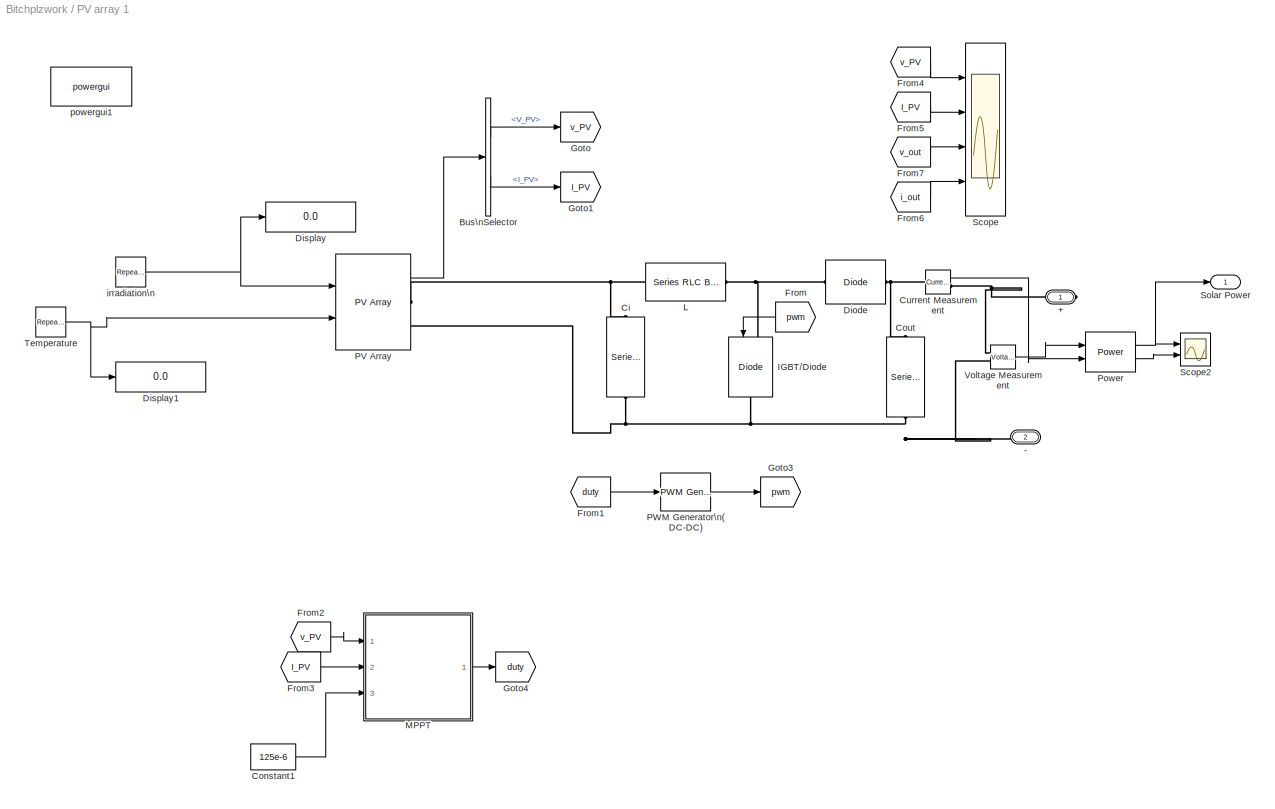
BLOCK [SubSystem] PV array 1
  Ports = [0, 1, 0, 0, 0, 0, 2]
  RequestExecContextInheritance = off
  SID = 27
BLOCK [PMIOPort] PV array 1/+
  SID = 74
  Side = Right
BLOCK [PMIOPort] PV array 1/-
  Port = 2
  SID = 75
  Side = Right
BLOCK [BusSelector] PV array 1/Bus\nSelector
  OutputAsBus = off
  OutputSignals = V_PV,I_PV
  Ports = [1, 2]
  SID = 28
BLOCK [Reference] PV array 1/Ci  REF=powerlib/Elements/Series RLC Branch
  BranchType = RC
  Capacitance = 100E-6
  Inductance = 1e-3
  InitialCurrent = 0
  InitialVoltage = 0
  LConnTagsString = __new0
  Measurements = None
  Ports = [0, 0, 0, 0, 0, 1, 1]
  RConnTagsString = __new0
  Resistance = 1E-4
  SID = 29
  SetiL0 = off
  Setx0 = off
  SourceBlock = powerlib/Elements/Series RLC Branch
  SourceProductBaseCode = PS
  SourceProductName = Simscape Electrical
  SourceType = Series RLC Branch
BLOCK [Constant] PV array 1/Constant1
  SID = 31
  Value = 125e-6
BLOCK [Reference] PV array 1/Cout  REF=powerlib/Elements/Series RLC Branch
  BranchType = RC
  Capacitance = 100E-6
  Inductance = 1e-3
  InitialCurrent = 0
  InitialVoltage = 0
  LConnTagsString = __new0
  Measurements = None
  Ports = [0, 0, 0, 0, 0, 1, 1]
  RConnTagsString = __new0
  Resistance = 1E-4
  SID = 32
  SetiL0 = off
  Setx0 = off
  SourceBlock = powerlib/Elements/Series RLC Branch
  SourceProductBaseCode = PS
  SourceProductName = Simscape Electrical
  SourceType = Series RLC Branch
BLOCK [Reference] PV array 1/Current Measurement  REF=powerlib/Measurements/Current Measurement
  OutputType = Complex
  PSBequivalent = 0
  PhasorSimulation = off
  Ports = [0, 1, 0, 0, 0, 1, 1]
  SID = 33
  SourceBlock = powerlib/Measurements/Current Measurement
  SourceProductBaseCode = PS
  SourceProductName = Simscape Electrical
  SourceType = Current Measurement
  UserDataPersistent = on
BLOCK [Reference] PV array 1/Diode  REF=powerlib/Power\nElectronics/Diode
  Cs = 250e-9
  IC = 0
  Lon = 0
  Measurements = off
  Ports = [0, 0, 0, 0, 0, 1, 1]
  Ron = 0.001
  Rs = 500
  SID = 34
  SourceBlock = powerlib/Power\nElectronics/Diode
  SourceProductBaseCode = PS
  SourceProductName = Simscape Electrical
  SourceType = Diode
  UseSnubber = 0
  Vf = 0.8
BLOCK [Display] PV array 1/Display
  Decimation = 1
  Ports = [1]
  SID = 35
BLOCK [Display] PV array 1/Display1
  Decimation = 1
  Ports = [1]
  SID = 36
BLOCK [From] PV array 1/From
  GotoTag = pwm
  SID = 37
BLOCK [From] PV array 1/From1
  GotoTag = duty
  SID = 38
BLOCK [From] PV array 1/From2
  GotoTag = v_PV
  SID = 39
BLOCK [From] PV array 1/From3
  GotoTag = I_PV
  SID = 40
BLOCK [From] PV array 1/From4
  GotoTag = v_PV
  SID = 41
BLOCK [From] PV array 1/From5
  GotoTag = I_PV
  SID = 42
BLOCK [From] PV array 1/From6
  GotoTag = i_out
  SID = 43
BLOCK [From] PV array 1/From7
  GotoTag = v_out
  SID = 44
BLOCK [Goto] PV array 1/Goto
  GotoTag = v_PV
  SID = 45
BLOCK [Goto] PV array 1/Goto1
  GotoTag = I_PV
  SID = 46
BLOCK [Goto] PV array 1/Goto3
  GotoTag = pwm
  SID = 47
BLOCK [Goto] PV array 1/Goto4
  GotoTag = duty
  SID = 48
BLOCK [Reference] PV array 1/IGBT//Diode  REF=powerlib/Power\nElectronics/IGBT//Diode
  Cs = inf
  Measurements = off
  Ports = [1, 0, 0, 0, 0, 1, 1]
  Ron = 1e-3
  Rs = 1e5
  SID = 49
  SourceBlock = powerlib/Power\nElectronics/IGBT//Diode
  SourceProductBaseCode = PS
  SourceProductName = Simscape Electrical
  SourceType = IGBT/Diode
BLOCK [Reference] PV array 1/L  REF=powerlib/Elements/Series RLC Branch
  BranchType = RL
  Capacitance = 100E-6
  Inductance = 2E-3
  InitialCurrent = 0
  InitialVoltage = 0
  LConnTagsString = __new0
  Measurements = None
  Ports = [0, 0, 0, 0, 0, 1, 1]
  RConnTagsString = __new0
  Resistance = 0.1
  SID = 50
  SetiL0 = off
  Setx0 = off
  SourceBlock = powerlib/Elements/Series RLC Branch
  SourceProductBaseCode = PS
  SourceProductName = Simscape Electrical
  SourceType = Series RLC Branch
BLOCK [SubSystem] PV array 1/MPPT
  ErrorFcn = Stateflow.Translate.translate
  PermitHierarchicalResolution = ExplicitOnly
  Ports = [3, 1]
  RequestExecContextInheritance = off
  SFBlockType = MATLAB Function
  SID = 51
  TreatAsAtomicUnit = on
BLOCK [Demux] PV array 1/MPPT/ Demux 
  Outputs = 1
  Ports = [1, 1]
  SID = 51::20
BLOCK [S-Function] PV array 1/MPPT/ SFunction 
  EnableBusSupport = on
  FunctionName = sf_sfun
  PortCounts = [3 2]
  Ports = [3, 2]
  SFcnIsStateOwnerBlock = off
  SFunctionDeploymentMode = off
  SID = 51::19
  Tag = Stateflow S-Function Bitchplzwork 1
BLOCK [Terminator] PV array 1/MPPT/ Terminator 
  SID = 51::21
BLOCK [Inport] PV array 1/MPPT/delta
  IconDisplay = Port number
  Port = 3
  SID = 51::23
BLOCK [Outport] PV array 1/MPPT/duty
  IconDisplay = Port number
  SID = 51::5
BLOCK [Inport] PV array 1/MPPT/ipv
  IconDisplay = Port number
  Port = 2
  SID = 51::22
BLOCK [Inport] PV array 1/MPPT/vpv
  IconDisplay = Port number
  SID = 51::1
BLOCK [Reference] PV array 1/PV Array  REF=re_lib/Solar/PV Array
  BAL = off
  I0 = 3e-11
  IL = 8.9123
  Im = 8.45
  Isc = 8.74
  ModuleName = Shanghai JA Solar Technology JAP6-72-315-3BB
  Ncell = 72
  Npar = 150
  Nser = 10
  PlotType = array @ 1000 W/m2 & specified temperatures
  PlotWhenSelected = off
  Pm = 315.016
  Ports = [2, 1, 0, 0, 0, 0, 2]
  Rs = 0.45827
  Rsh = 1485.5559
  SID = 65
  S_vec = [ 1000  500  100 ]
  SourceBlock = re_lib/Solar/PV Array
  SourceProductBaseCode = PS
  SourceProductName = Simscape Electrical
  SourceType = PV array
  Tc = 1e-6
  Temp_C_vec = [ 45 25  ]
  Tfilter = 5e-5
  Vm = 37.28
  Voc = 46.42
  alpha_Isc = 0.003496
  alpha_Isc_pc = 0.04
  beta_Voc = -0.13926
  beta_Voc_pc = -0.3
  nI = 0.95004
BLOCK [Reference] PV array 1/PWM Generator\n(DC-DC)  REF=powerlib_meascontrol/Pulse & Signal\nGenerators/PWM Generator\n(DC-DC)
  Fsw = 5000
  Ports = [1, 1]
  SID = 66
  SourceBlock = powerlib_meascontrol/Pulse & Signal\nGenerators/PWM Generator\n(DC-DC)
  SourceProductBaseCode = PS
  SourceProductName = Simscape Electrical
  SourceType = PWM Generator (DC-DC)
  Ts = 5e-6
BLOCK [Reference] PV array 1/Power  REF=powerlib_meascontrol/Measurements/Power
  Freq = 60
  Iinit = [1, 0]
  Ports = [2, 2]
  SID = 67
  SourceBlock = powerlib_meascontrol/Measurements/Power
  SourceProductBaseCode = PS
  SourceProductName = Simscape Electrical
  SourceType = Power
  Ts = 0
  Vinit = [1, 0]
BLOCK [Scope] PV array 1/Scope
  Floating = off
  NumInputPorts = 4
  Ports = [4]
  SID = 68
  ScopeSpecificationString = Simulink.scopes.TimeScopeBlockCfg('CurrentConfiguration', extmgr.ConfigurationSet(extmgr.Configuration('Core','General UI',true,'FigureColor',[1 1 1]),extmgr.Configuration('Core','Source UI',true),extmgr.Configuration('Sources','WiredSimulink',true),extmgr.Configuration('Visuals','Time Domain',true,'SerializedDisplays',{struct('MinYLimReal','-175.7751','MaxYLimReal','373.78722','YLabelReal','','Mi...<+4726ch>
BLOCK [Scope] PV array 1/Scope2
  Floating = off
  NumInputPorts = 2
  Ports = [2]
  SID = 69
  ScopeSpecificationString = Simulink.scopes.TimeScopeBlockCfg('CurrentConfiguration', extmgr.ConfigurationSet(extmgr.Configuration('Core','General UI',true),extmgr.Configuration('Core','Source UI',true),extmgr.Configuration('Sources','WiredSimulink',true,'DataLoggingVariableName','ScopeData5'),extmgr.Configuration('Visuals','Time Domain',true,'SerializedDisplays',{struct('MinYLimReal','-792.20948','MaxYLimReal','88.57883','Y...<+2042ch>
BLOCK [Outport] PV array 1/Solar Power
  IconDisplay = Port number
  SID = 76
BLOCK [Reference] PV array 1/Temperature  REF=simulink/Sources/Repeating\nSequence\nInterpolated
  LockScale = off
  LookUpMeth = Interpolation-Use End Values
  OutDataType = fixdt(0,8)
  OutDataTypeStr = double
  OutMax = []
  OutMin = []
  OutScaling = 2^-10
  OutValues = temp
  OutputDataTypeScalingMode = double
  Ports = [0, 1]
  SID = 72
  SourceBlock = simulink/Sources/Repeating\nSequence\nInterpolated
  SourceProductBaseCode = SL
  SourceProductName = Simulink
  SourceType = Repeating Sequence Interpolated
  TimeValues = timeStamp
  tsamp = 0.1
BLOCK [Reference] PV array 1/Voltage Measurement  REF=powerlib/Measurements/Voltage Measurement
  OutputType = Complex
  PSBequivalent = 0
  PhasorSimulation = off
  Ports = [0, 1, 0, 0, 0, 2]
  SID = 70
  SourceBlock = powerlib/Measurements/Voltage Measurement
  SourceProductBaseCode = PS
  SourceProductName = Simscape Electrical
  SourceType = Voltage Measurement
  UserDataPersistent = on
BLOCK [Reference] PV array 1/irradiation\n  REF=simulink/Sources/Repeating\nSequence\nInterpolated
  LockScale = off
  LookUpMeth = Interpolation-Use End Values
  OutDataType = fixdt(0,8)
  OutDataTypeStr = double
  OutMax = []
  OutMin = []
  OutScaling = 2^-10
  OutValues = irrad
  OutputDataTypeScalingMode = double
  Ports = [0, 1]
  SID = 71
  SourceBlock = simulink/Sources/Repeating\nSequence\nInterpolated
  SourceProductBaseCode = SL
  SourceProductName = Simulink
  SourceType = Repeating Sequence Interpolated
  TimeValues = timeStamp
  tsamp = 0.1
BLOCK [Reference] PV array 1/powergui1  REF=powerlib/powergui
  AutomaticDiscreteSolvers = off
  ContinueOnMaxIteration = off
  CurrentSourceSwitches = off
  DisableRonSwitches = off
  DisableSnubberDevices = off
  DisableVfSwitches = off
  DisplayEquations = off
  DisplayStyle = 1
  EnableUseOfTLC = off
  ErrMax = 1e-4
  ExternalGateDelay = off
  Frange = [0:2:500]
  FreqAxis = off
  FunctionMessages = off
  HookPort = off
  Interpol = off
  Iterations = 50
  MaxFrequency = 1000
  NonlinearTolerance = 0
  Pbase = 100e6
  Ports = []
  Priority = 1
  ResistiveCurrentMeasurement = off
  RestoreLinks = warning
  RmsSteady = 1
  SID = 73
  SPID = on
  SampleTime = Tss
  ShowGrid = off
  SolverType = Tustin/Backward Euler (TBE)
  SourceBlock = powerlib/powergui
  SourceProductBaseCode = PS
  SourceProductName = Simscape Electrical
  SourceType = PSB option menu block
  StartTime = 0.0
  SwTol = 0
  Ts = 100
  UnitsV = kV
  UnitsW = MW
  Xlog = on
  Ylog = off
  ZoomFFT = off
  buscounter = 0
  cycles = 1
  display = off
  echomessages = off
  frequency = 60
  frequencyindice = 0
  frequencyindicesteady = 1
  fundamental = 60
  methode = off
  nMaxIteration = 15
  save = off
  structure = 0
  variable = ZData
  x0status = blocks
BLOCK [Reference] Power\n(3ph, Instantaneous)  REF=powerlib_meascontrol/Measurements/Power\n(3ph, Instantaneous)
  Ports = [2, 2]
  SID = 277
  SourceBlock = powerlib_meascontrol/Measurements/Power\n(3ph, Instantaneous)
  SourceProductBaseCode = PS
  SourceProductName = Simscape Electrical
  SourceType = Power (3ph, Instantaneous)
BLOCK [Scope] Scope
  Floating = off
  NumInputPorts = 1
  Ports = [1]
  SID = 159
  ScopeSpecificationString = Simulink.scopes.TimeScopeBlockCfg('CurrentConfiguration', extmgr.ConfigurationSet(extmgr.Configuration('Core','General UI',true),extmgr.Configuration('Core','Source UI',true),extmgr.Configuration('Sources','WiredSimulink',true,'DataLoggingVariableName','ScopeData3'),extmgr.Configuration('Visuals','Time Domain',true,'SerializedDisplays',{struct('MinYLimReal','-1.36072','MaxYLimReal','0.70675','YLab...<+1394ch>
BLOCK [Scope] Scope1
  Floating = off
  NumInputPorts = 1
  Ports = [1]
  SID = 160
  ScopeSpecificationString = Simulink.scopes.TimeScopeBlockCfg('CurrentConfiguration', extmgr.ConfigurationSet(extmgr.Configuration('Core','General UI',true),extmgr.Configuration('Core','Source UI',true),extmgr.Configuration('Sources','WiredSimulink',true,'DataLoggingVariableName','ScopeData4'),extmgr.Configuration('Visuals','Time Domain',true),extmgr.Configuration('Tools','Plot Navigation',true),extmgr.Configuration('Tools',...<+40ch>
BLOCK [Scope] Scope2
  Floating = off
  NumInputPorts = 1
  Ports = [1]
  SID = 183
  ScopeSpecificationString = Simulink.scopes.TimeScopeBlockCfg('CurrentConfiguration', extmgr.ConfigurationSet(extmgr.Configuration('Core','General UI',true),extmgr.Configuration('Core','Source UI',true),extmgr.Configuration('Sources','WiredSimulink',true,'DataLoggingVariableName','ScopeData5'),extmgr.Configuration('Visuals','Time Domain',true),extmgr.Configuration('Tools','Plot Navigation',true),extmgr.Configuration('Tools',...<+40ch>
BLOCK [Scope] Scope3
  Floating = off
  NumInputPorts = 2
  Ports = [2]
  SID = 282
  ScopeSpecificationString = Simulink.scopes.TimeScopeBlockCfg('CurrentConfiguration', extmgr.ConfigurationSet(extmgr.Configuration('Core','General UI',true),extmgr.Configuration('Core','Source UI',true),extmgr.Configuration('Sources','WiredSimulink',true,'DataLoggingVariableName','ScopeData7'),extmgr.Configuration('Visuals','Time Domain',true,'SerializedDisplays',{struct('MinYLimReal','-0.00958','MaxYLimReal','0.01112','YLab...<+2170ch>
BLOCK [Scope] Scope4
  Floating = off
  NumInputPorts = 2
  Ports = [2]
  SID = 278
  ScopeSpecificationString = Simulink.scopes.TimeScopeBlockCfg('CurrentConfiguration', extmgr.ConfigurationSet(extmgr.Configuration('Core','General UI',true),extmgr.Configuration('Core','Source UI',true),extmgr.Configuration('Sources','WiredSimulink',true,'DataLoggingVariableName','ScopeData6'),extmgr.Configuration('Visuals','Time Domain',true,'SerializedDisplays',{struct('MinYLimReal','-90439.63552','MaxYLimReal','813956.719...<+2180ch>
BLOCK [Scope] Scope5
  Floating = off
  NumInputPorts = 1
  Ports = [1]
  SID = 509
  ScopeSpecificationString = Simulink.scopes.TimeScopeBlockCfg('CurrentConfiguration', extmgr.ConfigurationSet(extmgr.Configuration('Core','General UI',true),extmgr.Configuration('Core','Source UI',true),extmgr.Configuration('Sources','WiredSimulink',true,'DataLoggingVariableName','ScopeData8'),extmgr.Configuration('Visuals','Time Domain',true),extmgr.Configuration('Tools','Plot Navigation',true),extmgr.Configuration('Tools',...<+40ch>
BLOCK [Scope] Scope6
  Floating = off
  NumInputPorts = 1
  Ports = [1]
  SID = 512
  ScopeSpecificationString = Simulink.scopes.TimeScopeBlockCfg('CurrentConfiguration', extmgr.ConfigurationSet(extmgr.Configuration('Core','General UI',true),extmgr.Configuration('Core','Source UI',true),extmgr.Configuration('Sources','WiredSimulink',true,'DataLoggingVariableName','ScopeData9'),extmgr.Configuration('Visuals','Time Domain',true,'SerializedDisplays',{struct('MinYLimReal','79.97323','MaxYLimReal','80.00297','YLa...<+1448ch>
BLOCK [Reference] Series RLC Branch5  REF=powerlib/Elements/Series RLC Branch
  BranchType = LC
  Capacitance = C
  Inductance = L
  InitialCurrent = 0
  InitialVoltage = 0
  LConnTagsString = __new0
  Measurements = Branch voltage
  Ports = [0, 0, 0, 0, 0, 1, 1]
  RConnTagsString = __new0
  Resistance = R
  SID = 271
  SetiL0 = off
  Setx0 = off
  SourceBlock = powerlib/Elements/Series RLC Branch
  SourceProductBaseCode = PS
  SourceProductName = Simscape Electrical
  SourceType = Series RLC Branch
BLOCK [Reference] Series RLC Branch7  REF=powerlib/Elements/Series RLC Branch
  BranchType = LC
  Capacitance = C
  Inductance = L
  InitialCurrent = 0
  InitialVoltage = 0
  LConnTagsString = __new0
  Measurements = Branch voltage
  Ports = [0, 0, 0, 0, 0, 1, 1]
  RConnTagsString = __new0
  Resistance = R
  SID = 272
  SetiL0 = off
  Setx0 = off
  SourceBlock = powerlib/Elements/Series RLC Branch
  SourceProductBaseCode = PS
  SourceProductName = Simscape Electrical
  SourceType = Series RLC Branch
BLOCK [Reference] Series RLC Branch8  REF=powerlib/Elements/Series RLC Branch
  BranchType = LC
  Capacitance = C
  Inductance = L
  InitialCurrent = 0
  InitialVoltage = 0
  LConnTagsString = __new0
  Measurements = Branch voltage
  Ports = [0, 0, 0, 0, 0, 1, 1]
  RConnTagsString = __new0
  Resistance = R
  SID = 273
  SetiL0 = off
  Setx0 = off
  SourceBlock = powerlib/Elements/Series RLC Branch
  SourceProductBaseCode = PS
  SourceProductName = Simscape Electrical
  SourceType = Series RLC Branch
BLOCK [Outport] Solar Power
  IconDisplay = Port number
  Port = 4
  SID = 511
BLOCK [SubSystem] Subsystem
  Ports = [0, 1, 0, 0, 0, 0, 2]
  RequestExecContextInheritance = off
  SID = 25
BLOCK [PMIOPort] Subsystem/+
  SID = 26
  Side = Right
BLOCK [PMIOPort] Subsystem/-
  Port = 2
  SID = 176
  Side = Right
BLOCK [Outport] Subsystem/Battery Power\n
  IconDisplay = Port number
  SID = 182
BLOCK [Reference] Subsystem/Battery\npower source  REF=electricdrivelib/Extra Sources/Battery
  BatType = Nickel-Metal-Hydride
  Batt_Tr = 30
  Char_age = [2.3478, 3]
  Dis_age = [2.3478, 10]
  Dis_rate = 0.3
  Dp = 0
  FullV = 117.7966
  FullV2 = 3.45
  MaxQ = 1.6154
  MaxQ2 = 2.208
  MinV = 75
  N1 = 1500
  N2 = 10500
  N3 = 1000
  N4 = 1400
  N5 = 950
  Neq0 = 0
  NomQ = 1.5
  NomT = 25
  NomV = 100
  Normal_OP = 1.4423
  Normal_OP2 = 2.8
  Ports = [0, 1, 0, 0, 0, 2]
  PresetModel = on
  Qeol = 5.4*0.9
  R = 0.66667
  Rca = 0.6
  Reol = 0.013333*1.2
  SID = 2
  SOC = 80
  ShowAgeParam = off
  ShowTempParam = off
  SourceBlock = electricdrivelib/Extra Sources/Battery
  SourceProductBaseCode = PS
  SourceProductName = Simscape Electrical
  SourceType = Battery
  T2 = 0
  Ta1 = 25
  Ta2 = 45
  Tci = 20
  ThermalPreset = no
  Tsim = 1e6
  Units = Ampere-hour
  current = [1.5 3]
  expZone = [108.4746           0.3]
  expZone2 = [3.22        0.23]
  ti = 1000
BLOCK [Reference] Subsystem/Breaker  REF=powerlib/Elements/Breaker
  BreakerResistance = 0.01
  External = on
  InitialState = 0
  Measurements = None
  MoreParameters = off
  NoBreakLoop = off
  Ports = [1, 0, 0, 0, 0, 1, 1]
  SID = 3
  SnubberCapacitance = inf
  SnubberResistance = 1e6
  SourceBlock = powerlib/Elements/Breaker
  SourceProductBaseCode = PS
  SourceProductName = Simscape Electrical
  SourceType = Breaker
  SwitchingTimes = [ 1/60  5/60 ]
BLOCK [Reference] Subsystem/Breaker1  REF=powerlib/Elements/Breaker
  BreakerResistance = 0.01
  External = on
  InitialState = 0
  Measurements = None
  MoreParameters = off
  NoBreakLoop = off
  Ports = [1, 0, 0, 0, 0, 1, 1]
  SID = 4
  SnubberCapacitance = inf
  SnubberResistance = 1e6
  SourceBlock = powerlib/Elements/Breaker
  SourceProductBaseCode = PS
  SourceProductName = Simscape Electrical
  SourceType = Breaker
  SwitchingTimes = [ 1/60  5/60 ]
BLOCK [Reference] Subsystem/Breaker2  REF=powerlib/Elements/Breaker
  BreakerResistance = 0.01
  External = on
  InitialState = 0
  Measurements = None
  MoreParameters = off
  NoBreakLoop = off
  Ports = [1, 0, 0, 0, 0, 1, 1]
  SID = 5
  SnubberCapacitance = inf
  SnubberResistance = 1e6
  SourceBlock = powerlib/Elements/Breaker
  SourceProductBaseCode = PS
  SourceProductName = Simscape Electrical
  SourceType = Breaker
  SwitchingTimes = [ 1/60  5/60 ]
BLOCK [Reference] Subsystem/Breaker3  REF=powerlib/Elements/Breaker
  BreakerResistance = 0.01
  External = on
  InitialState = 0
  Measurements = None
  MoreParameters = off
  NoBreakLoop = off
  Ports = [1, 0, 0, 0, 0, 1, 1]
  SID = 6
  SnubberCapacitance = inf
  SnubberResistance = 1e6
  SourceBlock = powerlib/Elements/Breaker
  SourceProductBaseCode = PS
  SourceProductName = Simscape Electrical
  SourceType = Breaker
  SwitchingTimes = [ 1/60  5/60 ]
BLOCK [BusSelector] Subsystem/Bus\nSelector1
  OutputAsBus = off
  OutputSignals = Current (A),Voltage (V),SOC (%)
  Ports = [1, 3]
  SID = 8
BLOCK [Reference] Subsystem/Current Measurement  REF=powerlib/Measurements/Current Measurement
  OutputType = Complex
  PSBequivalent = 0
  PhasorSimulation = off
  Ports = [0, 1, 0, 0, 0, 1, 1]
  SID = 178
  SourceBlock = powerlib/Measurements/Current Measurement
  SourceProductBaseCode = PS
  SourceProductName = Simscape Electrical
  SourceType = Current Measurement
  UserDataPersistent = on
BLOCK [From] Subsystem/From
  GotoTag = SOC
  SID = 9
BLOCK [From] Subsystem/From1
  GotoTag = Load
  SID = 10
BLOCK [From] Subsystem/From2
  GotoTag = Charge
  SID = 11
BLOCK [Goto] Subsystem/Goto1
  GotoTag = SOC
  SID = 12
BLOCK [Goto] Subsystem/Goto2
  GotoTag = Load
  SID = 13
BLOCK [Goto] Subsystem/Goto3
  GotoTag = Charge
  SID = 14
BLOCK [Reference] Subsystem/I_L  REF=powerlib/Measurements/Current Measurement
  OutputType = Complex
  PSBequivalent = 0
  PhasorSimulation = off
  Ports = [0, 1, 0, 0, 0, 1, 1]
  SID = 15
  SourceBlock = powerlib/Measurements/Current Measurement
  SourceProductBaseCode = PS
  SourceProductName = Simscape Electrical
  SourceType = Current Measurement
BLOCK [SubSystem] Subsystem/MATLAB Function
  ErrorFcn = Stateflow.Translate.translate
  PermitHierarchicalResolution = ExplicitOnly
  Ports = [1, 2]
  RequestExecContextInheritance = off
  SFBlockType = MATLAB Function
  SID = 17
  TreatAsAtomicUnit = on
BLOCK [Demux] Subsystem/MATLAB Function/ Demux 
  Outputs = 1
  Ports = [1, 1]
  SID = 17::28
BLOCK [S-Function] Subsystem/MATLAB Function/ SFunction 
  EnableBusSupport = on
  FunctionName = sf_sfun
  PortCounts = [1 3]
  Ports = [1, 3]
  SFcnIsStateOwnerBlock = off
  SFunctionDeploymentMode = off
  SID = 17::27
  Tag = Stateflow S-Function Bitchplzwork 2
BLOCK [Terminator] Subsystem/MATLAB Function/ Terminator 
  SID = 17::29
BLOCK [Outport] Subsystem/MATLAB Function/ChargingOn
  IconDisplay = Port number
  Port = 2
  SID = 17::23
BLOCK [Outport] Subsystem/MATLAB Function/LoadOn
  IconDisplay = Port number
  SID = 17::5
BLOCK [Inport] Subsystem/MATLAB Function/SOC
  IconDisplay = Port number
  SID = 17::1
BLOCK [Reference] Subsystem/Power  REF=powerlib_meascontrol/Measurements/Power
  Freq = 60
  Iinit = [1, 0]
  Ports = [2, 2]
  SID = 180
  SourceBlock = powerlib_meascontrol/Measurements/Power
  SourceProductBaseCode = PS
  SourceProductName = Simscape Electrical
  SourceType = Power
  Ts = 0
  Vinit = [1, 0]
BLOCK [Product] Subsystem/Product
  InputSameDT = off
  OutDataTypeStr = Inherit: Inherit via internal rule
  Ports = [2, 1]
  SID = 18
  SaturateOnIntegerOverflow = off
BLOCK [Scope] Subsystem/Scope
  Floating = off
  NumInputPorts = 1
  Ports = [1]
  SID = 181
  ScopeSpecificationString = Simulink.scopes.TimeScopeBlockCfg('CurrentConfiguration', extmgr.ConfigurationSet(extmgr.Configuration('Core','General UI',true),extmgr.Configuration('Core','Source UI',true),extmgr.Configuration('Sources','WiredSimulink',true,'DataLoggingVariableName','ScopeData1'),extmgr.Configuration('Visuals','Time Domain',true),extmgr.Configuration('Tools','Plot Navigation',true),extmgr.Configuration('Tools',...<+40ch>
BLOCK [Scope] Subsystem/Scope1
  Floating = off
  NumInputPorts = 3
  Ports = [3]
  SID = 20
  ScopeSpecificationString = Simulink.scopes.TimeScopeBlockCfg('CurrentConfiguration', extmgr.ConfigurationSet(extmgr.Configuration('Core','General UI',true,'FigureColor',[1 1 1]),extmgr.Configuration('Core','Source UI',true),extmgr.Configuration('Sources','WiredSimulink',true,'DataLoggingVariableName','ScopeData2'),extmgr.Configuration('Visuals','Time Domain',true,'SerializedDisplays',{struct('MinYLimReal','-34.86689','MaxYL...<+4634ch>
BLOCK [Scope] Subsystem/Scope2
  Floating = off
  NumInputPorts = 3
  Ports = [3]
  SID = 21
  ScopeSpecificationString = Simulink.scopes.TimeScopeBlockCfg('CurrentConfiguration', extmgr.ConfigurationSet(extmgr.Configuration('Core','General UI',true,'FigureColor',[1 1 1]),extmgr.Configuration('Core','Source UI',true),extmgr.Configuration('Sources','WiredSimulink',true),extmgr.Configuration('Visuals','Time Domain',true,'SerializedDisplays',{struct('MinYLimReal','-15.19982','MaxYLimReal','136.80924','YLabelReal','','Mi...<+4583ch>
BLOCK [Reference] Subsystem/V_L  REF=powerlib/Measurements/Voltage Measurement
  OutputType = Complex
  PSBequivalent = 0
  PhasorSimulation = off
  Ports = [0, 1, 0, 0, 0, 2]
  SID = 22
  SourceBlock = powerlib/Measurements/Voltage Measurement
  SourceProductBaseCode = PS
  SourceProductName = Simscape Electrical
  SourceType = Voltage Measurement
BLOCK [Reference] Subsystem/Voltage Measurement  REF=powerlib/Measurements/Voltage Measurement
  OutputType = Complex
  PSBequivalent = 0
  PhasorSimulation = off
  Ports = [0, 1, 0, 0, 0, 2]
  SID = 177
  SourceBlock = powerlib/Measurements/Voltage Measurement
  SourceProductBaseCode = PS
  SourceProductName = Simscape Electrical
  SourceType = Voltage Measurement
  UserDataPersistent = on
BLOCK [Reference] Subsystem/powergui  REF=powerlib/powergui
  AutomaticDiscreteSolvers = off
  ContinueOnMaxIteration = off
  CurrentSourceSwitches = on
  DisableRonSwitches = off
  DisableSnubberDevices = off
  DisableVfSwitches = off
  DisplayEquations = off
  DisplayStyle = 1
  EnableUseOfTLC = off
  ErrMax = 1e-4
  ExternalGateDelay = off
  Frange = [0:2:500]
  FreqAxis = off
  FunctionMessages = off
  HookPort = off
  Interpol = off
  Iterations = 50
  MaxFrequency = 1000
  NonlinearTolerance = 0
  Pbase = 100e6
  Ports = []
  Priority = 1
  ResistiveCurrentMeasurement = off
  RestoreLinks = warning
  RmsSteady = 1
  SID = 23
  SPID = off
  SampleTime = 50e-6
  ShowGrid = off
  SolverType = Tustin
  SourceBlock = powerlib/powergui
  SourceProductBaseCode = PS
  SourceProductName = Simscape Electrical
  SourceType = PSB option menu block
  StartTime = 0.0
  SwTol = 0
  Ts = 10
  UnitsV = kV
  UnitsW = MW
  Xlog = on
  Ylog = off
  ZoomFFT = off
  buscounter = 0
  cycles = 1
  display = off
  echomessages = off
  frequency = 60
  frequencyindice = 0
  frequencyindicesteady = 1
  fundamental = 60
  methode = off
  nMaxIteration = 15
  save = off
  structure = 0
  variable = ZData
  x0status = blocks
BLOCK [Reference] Three-Phase\nV-I Measurement  REF=powerlib/Measurements/Three-Phase\nV-I Measurement
  CurrentMeasurement = yes
  Ipu = off
  LabelI = Iabc
  LabelV = Vabc
  OutputType = Complex
  PSBequivalent = 0
  Pbase = 100e6
  PhasorSimulation = off
  Ports = [0, 0, 0, 0, 0, 3, 3]
  SID = 274
  SetLabelI = on
  SetLabelV = on
  SourceBlock = powerlib/Measurements/Three-Phase\nV-I Measurement
  SourceProductBaseCode = PS
  SourceProductName = Simscape Electrical
  SourceType = Three-Phase VI Measurement
  Vbase = 500e3
  VoltageMeasurement = phase-to-ground
  Vpu = off
  VpuLL = off
BLOCK [Reference] Universal Bridge  REF=powerlib/Power\nElectronics/Universal Bridge
  Arms = 3
  Device = IGBT / Diodes
  ForwardVoltage = 0
  ForwardVoltages = [  0  0  ]
  GTOparameters = [ 10e-6 , 20e-6 ]
  IGBTparameters = [ 1e-6 , 2e-6 ]
  Lon = 0
  Measurements = None
  Measurements_2 = None
  Ports = [1, 0, 0, 0, 0, 3, 2]
  Ron = 1e-3
  SID = 184
  SnubberCapacitance = inf
  SnubberResistance = 1e5
  SourceBlock = powerlib/Power\nElectronics/Universal Bridge
  SourceProductBaseCode = PS
  SourceProductName = Simscape Electrical
  SourceType = Universal Bridge
  converterType = Rectifier
BLOCK [SubSystem] Wind 3 KW, 50HZ, 440V1
  Ports = [0, 1, 0, 0, 0, 0, 2]
  RequestExecContextInheritance = off
  SID = 132
BLOCK [PMIOPort] Wind 3 KW, 50HZ, 440V1/+ ve
  SID = 156
  Side = Right
BLOCK [PMIOPort] Wind 3 KW, 50HZ, 440V1/- ve
  Port = 2
  SID = 157
  Side = Right
BLOCK [BusSelector] Wind 3 KW, 50HZ, 440V1/Bus\nSelector
  OutputAsBus = off
  OutputSignals = Rotor speed wm (rad/s),Electromagnetic torque Te (N*m),Stator current is_a (A),Stator current is_b (A),Stator current is_c (A)
  Ports = [1, 5]
  SID = 133
BLOCK [Constant] Wind 3 KW, 50HZ, 440V1/Constant3
  SID = 134
  Value = 12
BLOCK [Reference] Wind 3 KW, 50HZ, 440V1/Current Measurement1  REF=powerlib/Measurements/Current Measurement
  OutputType = Complex
  PSBequivalent = 0
  PhasorSimulation = off
  Ports = [0, 1, 0, 0, 0, 1, 1]
  SID = 135
  SourceBlock = powerlib/Measurements/Current Measurement
  SourceProductBaseCode = PS
  SourceProductName = Simscape Electrical
  SourceType = Current Measurement
  UserDataPersistent = on
BLOCK [Reference] Wind 3 KW, 50HZ, 440V1/Current Measurement2  REF=powerlib/Measurements/Current Measurement
  OutputType = Complex
  PSBequivalent = 0
  PhasorSimulation = off
  Ports = [0, 1, 0, 0, 0, 1, 1]
  SID = 136
  SourceBlock = powerlib/Measurements/Current Measurement
  SourceProductBaseCode = PS
  SourceProductName = Simscape Electrical
  SourceType = Current Measurement
  UserDataPersistent = on
BLOCK [Display] Wind 3 KW, 50HZ, 440V1/Display
  Decimation = 1
  Ports = [1]
  SID = 173
BLOCK [Scope] Wind 3 KW, 50HZ, 440V1/Generator Output Data
  Floating = off
  NumInputPorts = 5
  Ports = [5]
  SID = 137
  ScopeSpecificationString = C++SS(StrPVP('Location','[6, 53, 1286, 759]'),StrPVP('Open','off'),MxPVP('AxesTitles',53,'struct(''axes1'',''%<SignalLabel>'',''axes2'',''%<SignalLabel>'',''axes3'',''%<SignalLabel>'',''axes4'',''%<SignalLabel>'',''axes5'',''%<SignalLabel>'')'),MxPVP('ScopeGraphics',56,'struct(''FigureColor'',''[0.501960784313725 0.501960784313725 0.501960784313725]'',''AxesColor'',''[0 0 0]'',''AxesTickColor'',''...<+500ch>
BLOCK [ManualSwitch] Wind 3 KW, 50HZ, 440V1/Manual Switch
  SID = 139
BLOCK [Gain] Wind 3 KW, 50HZ, 440V1/Multiply
  Gain = 1/152.9
  OutDataTypeStr = Inherit: Inherit via internal rule
  ParamDataTypeStr = Inherit: Inherit via internal rule
  SID = 171
  SaturateOnIntegerOverflow = off
BLOCK [Gain] Wind 3 KW, 50HZ, 440V1/Multiply1
  Gain = 10
  OutDataTypeStr = Inherit: Inherit via internal rule
  ParamDataTypeStr = Inherit: Inherit via internal rule
  SID = 172
  SaturateOnIntegerOverflow = off
BLOCK [Reference] Wind 3 KW, 50HZ, 440V1/Permanent Magnet\nSynchronous Machine  REF=powerlib/Machines/Permanent Magnet\nSynchronous Machine
  Flat = 120
  Flux = 0.1827
  FluxDistribution = Sinusoidal
  Inductance = 8.5e-3
  InitialConditions = [0,0, 0,0]
  InitialConditions5ph = [0 0 0 0 0 0]
  La = 0.00525
  MachineConstant = Flux linkage established by magnets (V.s)
  MeasurementBus = off
  Mechanical = [0.0006329 0.0003035 4 0]
  MechanicalLoad = Torque Tm
  NbPhases = 3
  PolePairs = 4
  Ports = [1, 1, 0, 0, 0, 3]
  PresetModel = 05:  8 Nm 300 Vdc 2000 RPM - 10 Nm
  RefAngle = 90 degrees behind phase A axis (modified Park)
  Resistance = 0.9585
  RotorType = Round
  SID = 140
  ShowDetailedParameters = on
  SourceBlock = powerlib/Machines/Permanent Magnet\nSynchronous Machine
  SourceProductBaseCode = PS
  SourceProductName = Simscape Electrical
  SourceType = Permanent Magnet Synchronous Machine
  TorqueCst = 1.0962
  TsBlock = -1
  TsPowergui = 0
  VoltageCst = 132.5525
  dqInductances = [8.5e-3,8.5e-3]
BLOCK [SubSystem] Wind 3 KW, 50HZ, 440V1/Pitch_angle-controller
  Ports = [1, 1]
  RequestExecContextInheritance = off
  SID = 162
BLOCK [Saturate] Wind 3 KW, 50HZ, 440V1/Pitch_angle-controller/0-pitch_max
  InputPortMap = u0
  LowerLimit = 0
  Ports = [1, 1]
  SID = 164
  UpperLimit = 45
BLOCK [Constant] Wind 3 KW, 50HZ, 440V1/Pitch_angle-controller/Constant2
  SID = 165
  Value = 2
BLOCK [Outport] Wind 3 KW, 50HZ, 440V1/Pitch_angle-controller/Pitch_angle
  IconDisplay = Port number
  SID = 170
BLOCK [RateLimiter] Wind 3 KW, 50HZ, 440V1/Pitch_angle-controller/Rate Limiter   
  FallingSlewLimit = -2
  RisingSlewLimit = 2
  SID = 166
BLOCK [Sum] Wind 3 KW, 50HZ, 440V1/Pitch_angle-controller/Sum
  IconShape = round
  InputSameDT = off
  Inputs = |+-
  OutDataTypeStr = Inherit: Inherit via internal rule
  Ports = [2, 1]
  SID = 167
BLOCK [Scope] Wind 3 KW, 50HZ, 440V1/Pitch_angle-controller/genertaor terminal6
  Floating = off
  NumInputPorts = 2
  Ports = [2]
  SID = 168
  ScopeSpecificationString = C++SS(StrPVP('Location','[483, 142, 1009, 421]'),StrPVP('Open','off'),MxPVP('AxesTitles',53,'struct(''axes1'',''%<SignalLabel>'',''axes2'',''%<SignalLabel>'')'),StrPVP('YMin','452~12.825'),StrPVP('YMax','465~13.1'),StrPVP('SaveToWorkspace','on'),StrPVP('SaveName','ScopeData9'),StrPVP('DataFormat','StructureWithTime'),StrPVP('LimitDataPoints','off'),StrPVP('BlockParamSampleInput','on'),StrPVP('Bloc...<+53ch>
BLOCK [Gain] Wind 3 KW, 50HZ, 440V1/Pitch_angle-controller/pitch_gain
  Gain = 500
  SID = 169
BLOCK [Inport] Wind 3 KW, 50HZ, 440V1/Pitch_angle-controller/wr
  IconDisplay = Port number
  SID = 163
BLOCK [Product] Wind 3 KW, 50HZ, 440V1/Product1
  InputSameDT = off
  OutDataTypeStr = Inherit: Inherit via internal rule
  Ports = [2, 1]
  RndMeth = Floor
  SID = 142
  SaturateOnIntegerOverflow = off
BLOCK [Product] Wind 3 KW, 50HZ, 440V1/Product2
  InputSameDT = off
  OutDataTypeStr = Inherit: Inherit via internal rule
  Ports = [2, 1]
  RndMeth = Floor
  SID = 143
  SaturateOnIntegerOverflow = off
BLOCK [Reference] Wind 3 KW, 50HZ, 440V1/RL   REF=powerlib/Elements/Three-Phase\nParallel RLC Load
  ActivePower = 0
  AttributesFormatString = \\n
  CapacitivePower = 400e3
  Configuration = Y (grounded)
  InductivePower = 0
  LConnTagsString = A|B|C
  LoadType = constant Z
  Measurements = None
  NominalFrequency = 50
  NominalVoltage = 400
  Pabc = [10e3 9e3 11e3]
  Pabcp = [10e3 9e3 11e3]
  Ports = [0, 0, 0, 0, 0, 3]
  QCabc = [100 90 110]
  QCabcp = [100 90 110]
  QLabc = [100 90 110]
  QLabcp = [100 90 110]
  SID = 144
  SourceBlock = powerlib/Elements/Three-Phase\nParallel RLC Load
  SourceProductBaseCode = PS
  SourceProductName = Simscape Electrical
  SourceType = Three-Phase Parallel RLC Load
  UnbalancedPower = off
  Vabc = [1e3 1e3 1e3]
  Vabcp = [1e3 1e3 1e3]
BLOCK [Reference] Wind 3 KW, 50HZ, 440V1/Rectifier AC- DC  REF=powerlib/Power\nElectronics/Universal Bridge
  Arms = 3
  Device = Diodes
  ForwardVoltage = 0.1
  ForwardVoltages = [  0  0  ]
  GTOparameters = [ 10e-6 , 20e-6 ]
  IGBTparameters = [ 1e-6 , 2e-6 ]
  Lon = 0
  Measurements = None
  Measurements_2 = None
  Ports = [0, 0, 0, 0, 0, 3, 2]
  Ron = 1e-3
  SID = 145
  SnubberCapacitance = inf
  SnubberResistance = 1e5
  SourceBlock = powerlib/Power\nElectronics/Universal Bridge
  SourceProductBaseCode = PS
  SourceProductName = Simscape Electrical
  SourceType = Universal Bridge
  converterType = Rectifier
BLOCK [Reference] Wind 3 KW, 50HZ, 440V1/Three-Phase\nV-I Measurement  REF=powerlib/Measurements/Three-Phase\nV-I Measurement
  CurrentMeasurement = yes
  Ipu = off
  LabelI = Iabc
  LabelV = Vabc
  OutputType = Complex
  PSBequivalent = 0
  Pbase = 100e6
  PhasorSimulation = off
  Ports = [0, 2, 0, 0, 0, 3, 3]
  SID = 147
  SetLabelI = off
  SetLabelV = off
  SourceBlock = powerlib/Measurements/Three-Phase\nV-I Measurement
  SourceProductBaseCode = PS
  SourceProductName = Simscape Electrical
  SourceType = Three-Phase VI Measurement
  Vbase = 500e3
  VoltageMeasurement = phase-to-ground
  Vpu = off
  VpuLL = off
BLOCK [Scope] Wind 3 KW, 50HZ, 440V1/V and I1
  Floating = off
  NumInputPorts = 1
  Ports = [1]
  SID = 148
  ScopeSpecificationString = C++SS(StrPVP('Location','[6, 53, 1286, 759]'),StrPVP('Open','off'),StrPVP('ZoomMode','xonly'),MxPVP('AxesTitles',53,'struct(''axes1'',''%<SignalLabel>'')'),MxPVP('ScopeGraphics',56,'struct(''FigureColor'',''[0.5 0.5 0.5]'',''AxesColor'',''[0 0 0]'',''AxesTickColor'',''[1 1 1]'',''LineColors'',''[1 1 0;1 0 1;0 1 1;1 0 0;0 1 0;0 0 1]'',''LineStyles'',''-|-|-|-|-|-'',''LineWidths'',''[0.5 0.5 0.5 0.5...<+364ch>
BLOCK [Scope] Wind 3 KW, 50HZ, 440V1/V and I2
  Floating = off
  NumInputPorts = 2
  Ports = [2]
  SID = 149
  ScopeSpecificationString = C++SS(StrPVP('Location','[6, 53, 1286, 759]'),StrPVP('Open','off'),StrPVP('ZoomMode','xonly'),MxPVP('AxesTitles',53,'struct(''axes1'',''%<SignalLabel>'',''axes2'',''%<SignalLabel>'')'),MxPVP('ScopeGraphics',56,'struct(''FigureColor'',''[0.5 0.5 0.5]'',''AxesColor'',''[0 0 0]'',''AxesTickColor'',''[1 1 1]'',''LineColors'',''[1 1 0;1 0 1;0 1 1;1 0 0;0 1 0;0 0 1]'',''LineStyles'',''-|-|-|-|-|-'',''Li...<+401ch>
BLOCK [Scope] Wind 3 KW, 50HZ, 440V1/V and I3
  Floating = off
  NumInputPorts = 1
  Ports = [1]
  SID = 150
  ScopeSpecificationString = C++SS(StrPVP('Location','[6, 53, 1286, 759]'),StrPVP('Open','off'),StrPVP('ZoomMode','xonly'),MxPVP('AxesTitles',53,'struct(''axes1'',''%<SignalLabel>'')'),MxPVP('ScopeGraphics',56,'struct(''FigureColor'',''[0.5 0.5 0.5]'',''AxesColor'',''[0 0 0]'',''AxesTickColor'',''[1 1 1]'',''LineColors'',''[1 1 0;1 0 1;0 1 1;1 0 0;0 1 0;0 0 1]'',''LineStyles'',''-|-|-|-|-|-'',''LineWidths'',''[0.5 0.5 0.5 0.5...<+363ch>
BLOCK [Scope] Wind 3 KW, 50HZ, 440V1/V and I4
  Floating = off
  NumInputPorts = 2
  Ports = [2]
  SID = 151
  ScopeSpecificationString = Simulink.scopes.TimeScopeBlockCfg('CurrentConfiguration', extmgr.ConfigurationSet(extmgr.Configuration('Core','General UI',true),extmgr.Configuration('Core','Source UI',true),extmgr.Configuration('Sources','WiredSimulink',true,'DataLoggingVariableName','ScopeData6','DataLoggingSaveFormat','StructureWithTime','DataLoggingDecimation','1','DataLoggingDecimateData',true),extmgr.Configuration('Visuals'...<+1735ch>
BLOCK [Scope] Wind 3 KW, 50HZ, 440V1/V and I5
  Floating = off
  NumInputPorts = 1
  Ports = [1]
  SID = 152
  ScopeSpecificationString = C++SS(StrPVP('Location','[6, 56, 1286, 762]'),StrPVP('Open','off'),StrPVP('ZoomMode','xonly'),MxPVP('AxesTitles',53,'struct(''axes1'',''%<SignalLabel>'')'),MxPVP('ScopeGraphics',56,'struct(''FigureColor'',''[0.5 0.5 0.5]'',''AxesColor'',''[0 0 0]'',''AxesTickColor'',''[1 1 1]'',''LineColors'',''[1 1 0;1 0 1;0 1 1;1 0 0;0 1 0;0 0 1]'',''LineStyles'',''-|-|-|-|-|-'',''LineWidths'',''[0.5 0.5 0.5 0.5...<+363ch>
BLOCK [Reference] Wind 3 KW, 50HZ, 440V1/Voltage Measurement1  REF=powerlib/Measurements/Voltage Measurement
  OutputType = Complex
  PSBequivalent = 0
  PhasorSimulation = off
  Ports = [0, 1, 0, 0, 0, 2]
  SID = 153
  SourceBlock = powerlib/Measurements/Voltage Measurement
  SourceProductBaseCode = PS
  SourceProductName = Simscape Electrical
  SourceType = Voltage Measurement
  UserDataPersistent = on
BLOCK [Outport] Wind 3 KW, 50HZ, 440V1/Wind Power
  IconDisplay = Port number
  SID = 158
BLOCK [Reference] Wind 3 KW, 50HZ, 440V1/Wind Speed  REF=simulink/Sources/Repeating\nSequence\nInterpolated
  LockScale = off
  LookUpMeth = Interpolation-Use End Values
  OutDataType = fixdt(0,8)
  OutDataTypeStr = double
  OutMax = []
  OutMin = []
  OutScaling = 2^-10
  OutValues = temp
  OutputDataTypeScalingMode = double
  Ports = [0, 1]
  SID = 161
  SourceBlock = simulink/Sources/Repeating\nSequence\nInterpolated
  SourceProductBaseCode = SL
  SourceProductName = Simulink
  SourceType = Repeating Sequence Interpolated
  TimeValues = timeStamp
  tsamp = 0.1
BLOCK [Reference] Wind 3 KW, 50HZ, 440V1/Wind Turbine1  REF=re_lib/Wind Generation/Wind Turbine
  P_wind_base = 0.8
  Pelec_base = 1.5e6/.9
  Pnom = 1.5e6
  Ports = [3, 1]
  SID = 154
  SourceBlock = re_lib/Wind Generation/Wind Turbine
  SourceProductBaseCode = PS
  SourceProductName = Simscape Electrical
  SourceType = Wind Turbine
  c1_c6 = [0.51763          116          0.4            5           21     0.006795]
  cp_nom = 0.48
  lambda_nom = 8.1
  pitch_angle = 0
  speed_nom = 1.2
  wind_base = 12
BLOCK [Scope] Wind 3 KW, 50HZ, 440V1/Wind speed and Pitch angle
  Floating = off
  NumInputPorts = 2
  Ports = [2]
  SID = 155
  ScopeSpecificationString = C++SS(StrPVP('Location','[6, 53, 1286, 759]'),StrPVP('Open','off'),MxPVP('AxesTitles',53,'struct(''axes1'',''Pitch angle'',''axes2'',''Wind speed'')'),MxPVP('ScopeGraphics',56,'struct(''FigureColor'',''[0.5 0.5 0.5]'',''AxesColor'',''[0 0 0]'',''AxesTickColor'',''[1 1 1]'',''LineColors'',''[1 1 0;1 0 1;0 1 1;1 0 0;0 1 0;0 0 1]'',''LineStyles'',''-|-|-|-|-|-'',''LineWidths'',''[0.5 0.5 0.5 0.5 0.5 ...<+364ch>
BLOCK [Reference] Wind 3 KW, 50HZ, 440V1/powergui  REF=powerlib/powergui
  AutomaticDiscreteSolvers = off
  ContinueOnMaxIteration = off
  CurrentSourceSwitches = off
  DisableRonSwitches = off
  DisableSnubberDevices = off
  DisableVfSwitches = off
  DisplayEquations = off
  DisplayStyle = 1
  EnableUseOfTLC = off
  ErrMax = 1e-4
  ExternalGateDelay = off
  Frange = [0:2:500]
  FreqAxis = off
  FunctionMessages = off
  HookPort = off
  Interpol = off
  Iterations = 50
  MaxFrequency = 1000
  NonlinearTolerance = 0
  Pbase = 100e6
  Ports = []
  Priority = 1
  ResistiveCurrentMeasurement = off
  RestoreLinks = warning
  RmsSteady = 1
  SID = 174
  SPID = on
  SampleTime = 50e-6
  ShowGrid = off
  SolverType = Tustin/Backward Euler (TBE)
  SourceBlock = powerlib/powergui
  SourceProductBaseCode = PS
  SourceProductName = Simscape Electrical
  SourceType = PSB option menu block
  StartTime = 0.0
  SwTol = 0
  Ts = 100
  UnitsV = kV
  UnitsW = MW
  Xlog = on
  Ylog = off
  ZoomFFT = off
  buscounter = 0
  cycles = 1
  display = off
  echomessages = off
  frequency = 60
  frequencyindice = 60
  frequencyindicesteady = 1
  fundamental = 60
  methode = off
  nMaxIteration = 15
  save = off
  structure = 0
  variable = ZData
  x0status = blocks
BLOCK [Outport] p
  IconDisplay = Port number
  SID = 279
BLOCK [Reference] powergui  REF=powerlib/powergui
  AutomaticDiscreteSolvers = off
  ContinueOnMaxIteration = off
  CurrentSourceSwitches = off
  DisableRonSwitches = off
  DisableSnubberDevices = off
  DisableVfSwitches = off
  DisplayEquations = off
  DisplayStyle = 1
  EnableUseOfTLC = off
  ErrMax = 1e-4
  ExternalGateDelay = off
  Frange = [0:2:500]
  FreqAxis = off
  FunctionMessages = off
  HookPort = off
  Interpol = off
  Iterations = 50
  MaxFrequency = 1000
  NonlinearTolerance = 0
  Pbase = 100e6
  Ports = []
  Priority = 1
  ResistiveCurrentMeasurement = off
  RestoreLinks = warning
  RmsSteady = 1
  SID = 131
  SPID = on
  SampleTime = Tss
  ShowGrid = off
  SolverType = Tustin/Backward Euler (TBE)
  SourceBlock = powerlib/powergui
  SourceProductBaseCode = PS
  SourceProductName = Simscape Electrical
  SourceType = PSB option menu block
  StartTime = 0.0
  SwTol = 0
  Ts = 100
  UnitsV = kV
  UnitsW = MW
  Xlog = on
  Ylog = off
  ZoomFFT = off
  buscounter = 0
  cycles = 1
  display = off
  echomessages = off
  frequency = 60
  frequencyindice = 0
  frequencyindicesteady = 1
  fundamental = 60
  methode = off
  nMaxIteration = 15
  save = off
  structure = 0
  variable = ZData
  x0status = blocks
BLOCK [Outport] q
  IconDisplay = Port number
  Port = 2
  SID = 280
ANNOTATION Inverter Control: Ud
ANNOTATION Inverter Control: Uq
ANNOTATION Inverter Control/Current Ref. Generator: evd
ANNOTATION Inverter Control/Current Ref. Generator: evq
ANNOTATION Inverter Control/Frequency Reference Generator: theta
NET Battery DC-DC converter /Analog\nFilter Design:1 -> Battery DC-DC converter /Product:1, Battery DC-DC converter /Scope5:2
LINE Battery DC-DC converter /Battery Converter\n Control/Compare\nTo Constant1:1 -> Battery DC-DC converter /Battery Converter\n Control/Product1:1
LINE Battery DC-DC converter /Battery Converter\n Control/Compare\nTo Constant:1 -> Battery DC-DC converter /Battery Converter\n Control/Product:1
LINE Battery DC-DC converter /Battery Converter\n Control/Demux:1 -> Battery DC-DC converter /Battery Converter\n Control/Product:2
LINE Battery DC-DC converter /Battery Converter\n Control/Demux:2 -> Battery DC-DC converter /Battery Converter\n Control/Product1:2
LINE Battery DC-DC converter /Battery Converter\n Control/From1:1 -> Battery DC-DC converter /Battery Converter\n Control/Sum3:2
NET Battery DC-DC converter /Battery Converter\n Control/From2:1 -> Battery DC-DC converter /Battery Converter\n Control/Subsystem3:1, Battery DC-DC converter /Battery Converter\n Control/Sum1:2
LINE Battery DC-DC converter /Battery Converter\n Control/PI 1/Gain1:1 -> Battery DC-DC converter /Battery Converter\n Control/PI 1/Sum1:1
LINE Battery DC-DC converter /Battery Converter\n Control/PI 1/Gain2:1 -> Battery DC-DC converter /Battery Converter\n Control/PI 1/Integrator:1
LINE Battery DC-DC converter /Battery Converter\n Control/PI 1/Integrator:1 -> Battery DC-DC converter /Battery Converter\n Control/PI 1/Sum1:2
LINE Battery DC-DC converter /Battery Converter\n Control/PI 1/Saturation:1 -> Battery DC-DC converter /Battery Converter\n Control/PI 1/ :1
LINE Battery DC-DC converter /Battery Converter\n Control/PI 1/Sum1:1 -> Battery DC-DC converter /Battery Converter\n Control/PI 1/Saturation:1
NET Battery DC-DC converter /Battery Converter\n Control/PI 1/e:1 -> Battery DC-DC converter /Battery Converter\n Control/PI 1/Gain1:1, Battery DC-DC converter /Battery Converter\n Control/PI 1/Gain2:1
NET Battery DC-DC converter /Battery Converter\n Control/PI 1:1 -> Battery DC-DC converter /Battery Converter\n Control/Sign:1, Battery DC-DC converter /Battery Converter\n Control/Subsystem2:1, Battery DC-DC converter /Battery Converter\n Control/Sum1:1
LINE Battery DC-DC converter /Battery Converter\n Control/PI 2/Gain1:1 -> Battery DC-DC converter /Battery Converter\n Control/PI 2/Sum1:1
LINE Battery DC-DC converter /Battery Converter\n Control/PI 2/Gain2:1 -> Battery DC-DC converter /Battery Converter\n Control/PI 2/Integrator:1
LINE Battery DC-DC converter /Battery Converter\n Control/PI 2/Integrator:1 -> Battery DC-DC converter /Battery Converter\n Control/PI 2/Sum1:2
LINE Battery DC-DC converter /Battery Converter\n Control/PI 2/Saturation:1 -> Battery DC-DC converter /Battery Converter\n Control/PI 2/ :1
LINE Battery DC-DC converter /Battery Converter\n Control/PI 2/Sum1:1 -> Battery DC-DC converter /Battery Converter\n Control/PI 2/Saturation:1
NET Battery DC-DC converter /Battery Converter\n Control/PI 2/e:1 -> Battery DC-DC converter /Battery Converter\n Control/PI 2/Gain1:1, Battery DC-DC converter /Battery Converter\n Control/PI 2/Gain2:1
LINE Battery DC-DC converter /Battery Converter\n Control/PI 2:1 -> Battery DC-DC converter /Battery Converter\n Control/PWM Generator2:1
LINE Battery DC-DC converter /Battery Converter\n Control/PWM Generator2:1 -> Battery DC-DC converter /Battery Converter\n Control/Demux:1
NET Battery DC-DC converter /Battery Converter\n Control/Product1:1 -> Battery DC-DC converter /Battery Converter\n Control/DC Bus Measurements4:2, Battery DC-DC converter /Battery Converter\n Control/S1:1, Battery DC-DC converter /Battery Converter\n Control/Subsystem4:1
NET Battery DC-DC converter /Battery Converter\n Control/Product:1 -> Battery DC-DC converter /Battery Converter\n Control/DC Bus Measurements4:1, Battery DC-DC converter /Battery Converter\n Control/S2:1, Battery DC-DC converter /Battery Converter\n Control/Subsystem5:1
NET Battery DC-DC converter /Battery Converter\n Control/Sign:1 -> Battery DC-DC converter /Battery Converter\n Control/Compare\nTo Constant1:1, Battery DC-DC converter /Battery Converter\n Control/Compare\nTo Constant:1, Battery DC-DC converter /Battery Converter\n Control/Subsystem6:1
NET Battery DC-DC converter /Battery Converter\n Control/Step1:1 -> Battery DC-DC converter /Battery Converter\n Control/Subsystem1:1, Battery DC-DC converter /Battery Converter\n Control/Sum3:1
NET Battery DC-DC converter /Battery Converter\n Control/Subsystem1/LPF vq6:1 -> Battery DC-DC converter /Battery Converter\n Control/Subsystem1/Goto:1, Battery DC-DC converter /Battery Converter\n Control/Subsystem1/To Workspace1:1
LINE Battery DC-DC converter /Battery Converter\n Control/Subsystem1/Vdc_ref:1 -> Battery DC-DC converter /Battery Converter\n Control/Subsystem1/LPF vq6:1
LINE Battery DC-DC converter /Battery Converter\n Control/Subsystem2/Ibat_ref:1 -> Battery DC-DC converter /Battery Converter\n Control/Subsystem2/LPF vq6:1
NET Battery DC-DC converter /Battery Converter\n Control/Subsystem2/LPF vq6:1 -> Battery DC-DC converter /Battery Converter\n Control/Subsystem2/Goto2:1, Battery DC-DC converter /Battery Converter\n Control/Subsystem2/To Workspace1:1
LINE Battery DC-DC converter /Battery Converter\n Control/Subsystem3/ILbat:1 -> Battery DC-DC converter /Battery Converter\n Control/Subsystem3/LPF vq6:1
LINE Battery DC-DC converter /Battery Converter\n Control/Subsystem3/LPF vq6:1 -> Battery DC-DC converter /Battery Converter\n Control/Subsystem3/To Workspace1:1
LINE Battery DC-DC converter /Battery Converter\n Control/Subsystem4/S1:1 -> Battery DC-DC converter /Battery Converter\n Control/Subsystem4/Zero-Order\nHold:1
LINE Battery DC-DC converter /Battery Converter\n Control/Subsystem4/Zero-Order\nHold:1 -> Battery DC-DC converter /Battery Converter\n Control/Subsystem4/To Workspace1:1
LINE Battery DC-DC converter /Battery Converter\n Control/Subsystem5/S2:1 -> Battery DC-DC converter /Battery Converter\n Control/Subsystem5/Zero-Order\nHold:1
LINE Battery DC-DC converter /Battery Converter\n Control/Subsystem5/Zero-Order\nHold:1 -> Battery DC-DC converter /Battery Converter\n Control/Subsystem5/To Workspace1:1
LINE Battery DC-DC converter /Battery Converter\n Control/Subsystem6/Sign:1 -> Battery DC-DC converter /Battery Converter\n Control/Subsystem6/Zero-Order\nHold:1
NET Battery DC-DC converter /Battery Converter\n Control/Subsystem6/Zero-Order\nHold:1 -> Battery DC-DC converter /Battery Converter\n Control/Subsystem6/Goto2:1, Battery DC-DC converter /Battery Converter\n Control/Subsystem6/To Workspace1:1
LINE Battery DC-DC converter /Battery Converter\n Control/Sum1:1 -> Battery DC-DC converter /Battery Converter\n Control/PI 2:1
LINE Battery DC-DC converter /Battery Converter\n Control/Sum3:1 -> Battery DC-DC converter /Battery Converter\n Control/PI 1:1
LINE Battery DC-DC converter /Battery:1 -> Battery DC-DC converter /Bus\nSelector:1
NET Battery DC-DC converter /Bus\nSelector:1 -> Battery DC-DC converter /Goto:1, Battery DC-DC converter /Product:2, Battery DC-DC converter /Scope5:1
NET Battery DC-DC converter /Bus\nSelector:2 -> Battery DC-DC converter /Goto1:1, Battery DC-DC converter /SOC:1
NET Battery DC-DC converter /Bus\nSelector:3 -> Battery DC-DC converter /Analog\nFilter Design:1, Battery DC-DC converter /Goto2:1
LINE Battery DC-DC converter /From1:1 -> Battery DC-DC converter /IGBT//Diode:1
LINE Battery DC-DC converter /From2:1 -> Battery DC-DC converter /MATLAB Function:1
LINE Battery DC-DC converter /From:1 -> Battery DC-DC converter /IGBT//Diode1:1
LINE Battery DC-DC converter /IL6:1 -> Battery DC-DC converter /Goto5:1
LINE Battery DC-DC converter /MATLAB Function/ Demux :1 -> Battery DC-DC converter /MATLAB Function/ Terminator :1
LINE Battery DC-DC converter /MATLAB Function/ SFunction :1 -> Battery DC-DC converter /MATLAB Function/ Demux :1
LINE Battery DC-DC converter /MATLAB Function/ SFunction :2 -> Battery DC-DC converter /MATLAB Function/LoadOn:1
LINE Battery DC-DC converter /MATLAB Function/ SFunction :3 -> Battery DC-DC converter /MATLAB Function/ChargingOn:1
LINE Battery DC-DC converter /MATLAB Function/SOC:1 -> Battery DC-DC converter /MATLAB Function/ SFunction :1
LINE Battery DC-DC converter /MATLAB Function:1 -> Battery DC-DC converter /Goto4:1
LINE Battery DC-DC converter /MATLAB Function:2 -> Battery DC-DC converter /Goto3:1
NET Battery DC-DC converter /Product:1 -> Battery DC-DC converter /Bp:1, Battery DC-DC converter /Scope1:1
LINE Battery DC-DC converter /Voltage Measurement:1 -> Battery DC-DC converter /Goto6:1
LINE Battery DC-DC converter :1 -> Scope6:1
NET Battery DC-DC converter :2 -> Battery Power:1, Scope5:1
NET From1:1 -> Power\n(3ph, Instantaneous):2, Scope3:2
NET From:1 -> Power\n(3ph, Instantaneous):1, Scope3:1
LINE Inverter Control/ Voltage Reference Generator/Mux4:1 -> Inverter Control/ Voltage Reference Generator/Vabc*:1
LINE Inverter Control/ Voltage Reference Generator/Phase A\nreference:1 -> Inverter Control/ Voltage Reference Generator/Mux4:1
LINE Inverter Control/ Voltage Reference Generator/Phase B\nreference:1 -> Inverter Control/ Voltage Reference Generator/Mux4:2
LINE Inverter Control/ Voltage Reference Generator/Phase C\nreference:1 -> Inverter Control/ Voltage Reference Generator/Mux4:3
LINE Inverter Control/ Voltage Reference Generator/Ramp:1 -> Inverter Control/ Voltage Reference Generator/Saturation:1
LINE Inverter Control/ Voltage Reference Generator/Saturation:1 -> Inverter Control/ Voltage Reference Generator/Product:2
NET Inverter Control/ Voltage Reference Generator:1 -> Inverter Control/V*:1, Inverter Control/Vabc*  - vdq*:1
LINE Inverter Control/Cross Terms/Gain1:1 -> Inverter Control/Cross Terms/ d:1
LINE Inverter Control/Cross Terms/Gain2:1 -> Inverter Control/Cross Terms/ q:1
LINE Inverter Control/Cross Terms/id*:1 -> Inverter Control/Cross Terms/Gain1:1
LINE Inverter Control/Cross Terms/iq*:1 -> Inverter Control/Cross Terms/Gain2:1
LINE Inverter Control/Cross Terms:1 -> Inverter Control/Sum4:2
LINE Inverter Control/Cross Terms:2 -> Inverter Control/Sum5:1
NET Inverter Control/Current Ref. Generator/Divide1:1 -> Inverter Control/Current Ref. Generator/Goto4:1, Inverter Control/Current Ref. Generator/iq*:1
NET Inverter Control/Current Ref. Generator/Divide:1 -> Inverter Control/Current Ref. Generator/Goto1:1, Inverter Control/Current Ref. Generator/id*:1
LINE Inverter Control/Current Ref. Generator/Sum1:1 -> Inverter Control/Current Ref. Generator/Divide1:2
LINE Inverter Control/Current Ref. Generator/Sum3:1 -> Inverter Control/Current Ref. Generator/Divide:1
LINE Inverter Control/Current Ref. Generator/Zd1:1 -> Inverter Control/Current Ref. Generator/Sum1:2
LINE Inverter Control/Current Ref. Generator/Zd:1 -> Inverter Control/Current Ref. Generator/Sum3:1
NET Inverter Control/Current Ref. Generator/Zd^2+Zq^2:1 -> Inverter Control/Current Ref. Generator/Divide1:1, Inverter Control/Current Ref. Generator/Divide:2, Inverter Control/Current Ref. Generator/Scope24:1
LINE Inverter Control/Current Ref. Generator/Zq1:1 -> Inverter Control/Current Ref. Generator/Sum3:2
LINE Inverter Control/Current Ref. Generator/Zq:1 -> Inverter Control/Current Ref. Generator/Sum1:1
NET Inverter Control/Current Ref. Generator/evd:1 -> Inverter Control/Current Ref. Generator/Zd:1, Inverter Control/Current Ref. Generator/Zq:1
NET Inverter Control/Current Ref. Generator/evq:1 -> Inverter Control/Current Ref. Generator/Zd1:1, Inverter Control/Current Ref. Generator/Zq1:1
NET Inverter Control/Current Ref. Generator:1 -> Inverter Control/Cross Terms:1, Inverter Control/Sum2:1
NET Inverter Control/Current Ref. Generator:2 -> Inverter Control/Cross Terms:2, Inverter Control/Sum3:1
LINE Inverter Control/Frequency Reference Generator/Constant:1 -> Inverter Control/Frequency Reference Generator/Relational\nOperator:2
NET Inverter Control/Frequency Reference Generator/In1:1 -> Inverter Control/Frequency Reference Generator/Goto1:1, Inverter Control/Frequency Reference Generator/w*:1
NET Inverter Control/Frequency Reference Generator/Integrator:1 -> Inverter Control/Frequency Reference Generator/Goto3:1, Inverter Control/Frequency Reference Generator/Relational\nOperator:1, Inverter Control/Frequency Reference Generator/theta*:1
LINE Inverter Control/Frequency Reference Generator/Relational\nOperator:1 -> Inverter Control/Frequency Reference Generator/Integrator:2
LINE Inverter Control/Frequency Reference Generator/w*:1 -> Inverter Control/Frequency Reference Generator/Integrator:1
NET Inverter Control/Frequency Reference Generator:1 -> Inverter Control/Iabc  - idq:2, Inverter Control/V*1:1, Inverter Control/Vabc  - vdq:2, Inverter Control/Vabc*  - vdq*:2, Inverter Control/vdq - Vabc:2
LINE Inverter Control/From1:1 -> Inverter Control/Iabc  - idq:1
LINE Inverter Control/From6:1 -> Inverter Control/Sum9:2
LINE Inverter Control/From7:1 -> Inverter Control/Sum8:2
LINE Inverter Control/From8:1 -> Inverter Control/Frequency Reference Generator:1
LINE Inverter Control/From:1 -> Inverter Control/Vabc  - vdq:1
NET Inverter Control/Iabc  - idq/Demux:1 -> Inverter Control/Iabc  - idq/Goto6:1, Inverter Control/Iabc  - idq/id:1
NET Inverter Control/Iabc  - idq/Demux:2 -> Inverter Control/Iabc  - idq/Goto7:1, Inverter Control/Iabc  - idq/iq:1
LINE Inverter Control/Iabc  - idq/Iabc:1 -> Inverter Control/Iabc  - idq/abc  - alfa//beta:1
LINE Inverter Control/Iabc  - idq/abc  - alfa//beta/Mux:1 -> Inverter Control/Iabc  - idq/abc  - alfa//beta/alfa//beta:1
NET Inverter Control/Iabc  - idq/abc  - alfa//beta/abc:1 -> Inverter Control/Iabc  - idq/abc  - alfa//beta/d_s:1, Inverter Control/Iabc  - idq/abc  - alfa//beta/q_s:1
LINE Inverter Control/Iabc  - idq/abc  - alfa//beta/d_s:1 -> Inverter Control/Iabc  - idq/abc  - alfa//beta/Mux:1
LINE Inverter Control/Iabc  - idq/abc  - alfa//beta/q_s:1 -> Inverter Control/Iabc  - idq/abc  - alfa//beta/Mux:2
LINE Inverter Control/Iabc  - idq/abc  - alfa//beta:1 -> Inverter Control/Iabc  - idq/alfa//beta - dq:1
NET Inverter Control/Iabc  - idq/alfa//beta - dq/Mux1:1 -> Inverter Control/Iabc  - idq/alfa//beta - dq/d:1, Inverter Control/Iabc  - idq/alfa//beta - dq/q:1
LINE Inverter Control/Iabc  - idq/alfa//beta - dq/Mux:1 -> Inverter Control/Iabc  - idq/alfa//beta - dq/d//q:1
LINE Inverter Control/Iabc  - idq/alfa//beta - dq/alfa//beta:1 -> Inverter Control/Iabc  - idq/alfa//beta - dq/Mux1:1
LINE Inverter Control/Iabc  - idq/alfa//beta - dq/d:1 -> Inverter Control/Iabc  - idq/alfa//beta - dq/Mux:1
LINE Inverter Control/Iabc  - idq/alfa//beta - dq/q:1 -> Inverter Control/Iabc  - idq/alfa//beta - dq/Mux:2
LINE Inverter Control/Iabc  - idq/alfa//beta - dq/theta:1 -> Inverter Control/Iabc  - idq/alfa//beta - dq/Mux1:2
LINE Inverter Control/Iabc  - idq/alfa//beta - dq:1 -> Inverter Control/Iabc  - idq/Demux:1
LINE Inverter Control/Iabc  - idq/theta:1 -> Inverter Control/Iabc  - idq/alfa//beta - dq:2
NET Inverter Control/Iabc  - idq:1 -> Inverter Control/LPF iq:1, Inverter Control/PQ calculation:5, Inverter Control/PQ calculation:6
NET Inverter Control/Iabc  - idq:2 -> Inverter Control/LPF id:1, Inverter Control/PQ calculation:7, Inverter Control/PQ calculation:8
LINE Inverter Control/LPF id:1 -> Inverter Control/Sum2:2
LINE Inverter Control/LPF iq:1 -> Inverter Control/Sum3:2
NET Inverter Control/LPF vd:1 -> Inverter Control/Sum4:3, Inverter Control/Sum:2
NET Inverter Control/LPF vq:1 -> Inverter Control/Sum1:2, Inverter Control/Sum5:3
LINE Inverter Control/Multiply1:1 -> Inverter Control/Sum9:1
LINE Inverter Control/Multiply2:1 -> Inverter Control/Transfer Fcn:1
LINE Inverter Control/Multiply:1 -> Inverter Control/Sum8:1
LINE Inverter Control/Mux1:1 -> Inverter Control/vdq - Vabc:1
LINE Inverter Control/P:1 -> Inverter Control/Sum6:2
LINE Inverter Control/PI id/Gain1:1 -> Inverter Control/PI id/Sum1:1
LINE Inverter Control/PI id/Gain2:1 -> Inverter Control/PI id/Integrator:1
LINE Inverter Control/PI id/Integrator:1 -> Inverter Control/PI id/Sum1:2
LINE Inverter Control/PI id/Saturation:1 -> Inverter Control/PI id/ :1
LINE Inverter Control/PI id/Sum1:1 -> Inverter Control/PI id/Saturation:1
NET Inverter Control/PI id/e:1 -> Inverter Control/PI id/Gain1:1, Inverter Control/PI id/Gain2:1
LINE Inverter Control/PI id:1 -> Inverter Control/Sum4:1
LINE Inverter Control/PI iq/Gain1:1 -> Inverter Control/PI iq/Sum1:1
LINE Inverter Control/PI iq/Gain2:1 -> Inverter Control/PI iq/Integrator:1
LINE Inverter Control/PI iq/Integrator:1 -> Inverter Control/PI iq/Sum1:2
LINE Inverter Control/PI iq/Saturation:1 -> Inverter Control/PI iq/ :1
LINE Inverter Control/PI iq/Sum1:1 -> Inverter Control/PI iq/Saturation:1
NET Inverter Control/PI iq/e:1 -> Inverter Control/PI iq/Gain1:1, Inverter Control/PI iq/Gain2:1
LINE Inverter Control/PI iq:1 -> Inverter Control/Sum5:2
LINE Inverter Control/PI vd/Gain1:1 -> Inverter Control/PI vd/Sum1:1
LINE Inverter Control/PI vd/Gain2:1 -> Inverter Control/PI vd/Integrator:1
LINE Inverter Control/PI vd/Integrator:1 -> Inverter Control/PI vd/Sum1:2
LINE Inverter Control/PI vd/Saturation:1 -> Inverter Control/PI vd/ :1
LINE Inverter Control/PI vd/Sum1:1 -> Inverter Control/PI vd/Saturation:1
NET Inverter Control/PI vd/e:1 -> Inverter Control/PI vd/Gain1:1, Inverter Control/PI vd/Gain2:1
LINE Inverter Control/PI vd:1 -> Inverter Control/Current Ref. Generator:1
LINE Inverter Control/PI vq/Gain1:1 -> Inverter Control/PI vq/Sum1:1
LINE Inverter Control/PI vq/Gain2:1 -> Inverter Control/PI vq/Integrator:1
LINE Inverter Control/PI vq/Integrator:1 -> Inverter Control/PI vq/Sum1:2
LINE Inverter Control/PI vq/Saturation:1 -> Inverter Control/PI vq/ :1
LINE Inverter Control/PI vq/Sum1:1 -> Inverter Control/PI vq/Saturation:1
NET Inverter Control/PI vq/e:1 -> Inverter Control/PI vq/Gain1:1, Inverter Control/PI vq/Gain2:1
LINE Inverter Control/PI vq:1 -> Inverter Control/Current Ref. Generator:2
LINE Inverter Control/PQ calculation/Id:1 -> Inverter Control/PQ calculation/Product2:2
LINE Inverter Control/PQ calculation/Idq:1 -> Inverter Control/PQ calculation/Product:2
LINE Inverter Control/PQ calculation/Iq:1 -> Inverter Control/PQ calculation/Product3:2
LINE Inverter Control/PQ calculation/Iqp:1 -> Inverter Control/PQ calculation/Product1:2
LINE Inverter Control/PQ calculation/Product1:1 -> Inverter Control/PQ calculation/Sum6:2
LINE Inverter Control/PQ calculation/Product2:1 -> Inverter Control/PQ calculation/Sum7:2
LINE Inverter Control/PQ calculation/Product3:1 -> Inverter Control/PQ calculation/Sum7:1
LINE Inverter Control/PQ calculation/Product:1 -> Inverter Control/PQ calculation/Sum6:1
LINE Inverter Control/PQ calculation/Sum6:1 -> Inverter Control/PQ calculation/P:1
LINE Inverter Control/PQ calculation/Sum7:1 -> Inverter Control/PQ calculation/Q:1
LINE Inverter Control/PQ calculation/Vd:1 -> Inverter Control/PQ calculation/Product3:1
LINE Inverter Control/PQ calculation/Vdp:1 -> Inverter Control/PQ calculation/Product:1
LINE Inverter Control/PQ calculation/Vq:1 -> Inverter Control/PQ calculation/Product2:1
LINE Inverter Control/PQ calculation/Vqp:1 -> Inverter Control/PQ calculation/Product1:1
LINE Inverter Control/PQ calculation:1 -> Inverter Control/Sum6:1
LINE Inverter Control/PQ calculation:2 -> Inverter Control/Sum7:1
NET Inverter Control/PWM/Gain2:1 -> Inverter Control/PWM/Goto1:1, Inverter Control/PWM/PWM Generator:1
NET Inverter Control/PWM/PWM Generator:1 -> Inverter Control/PWM/Goto2:1, Inverter Control/PWM/S:1
LINE Inverter Control/PWM/Uabc_ref:1 -> Inverter Control/PWM/Gain2:1
LINE Inverter Control/PWM:1 -> Inverter Control/S:1
LINE Inverter Control/Q:1 -> Inverter Control/Sum7:2
LINE Inverter Control/Sum1:1 -> Inverter Control/PI vq:1
LINE Inverter Control/Sum2:1 -> Inverter Control/PI id:1
LINE Inverter Control/Sum3:1 -> Inverter Control/PI iq:1
LINE Inverter Control/Sum4:1 -> Inverter Control/Mux1:1
LINE Inverter Control/Sum5:1 -> Inverter Control/Mux1:2
LINE Inverter Control/Sum6:1 -> Inverter Control/Multiply:1
LINE Inverter Control/Sum7:1 -> Inverter Control/Multiply1:1
LINE Inverter Control/Sum8:1 -> Inverter Control/Multiply2:1
LINE Inverter Control/Sum:1 -> Inverter Control/PI vd:1
LINE Inverter Control/Transfer Fcn:1 -> Inverter Control/Goto:1
NET Inverter Control/Vabc  - vdq/Demux:1 -> Inverter Control/Vabc  - vdq/Goto3:1, Inverter Control/Vabc  - vdq/vd:1
NET Inverter Control/Vabc  - vdq/Demux:2 -> Inverter Control/Vabc  - vdq/Goto1:1, Inverter Control/Vabc  - vdq/vq:1
LINE Inverter Control/Vabc  - vdq/Vabc:1 -> Inverter Control/Vabc  - vdq/abc  - alfa//beta:1
LINE Inverter Control/Vabc  - vdq/abc  - alfa//beta/Mux:1 -> Inverter Control/Vabc  - vdq/abc  - alfa//beta/alfa//beta:1
NET Inverter Control/Vabc  - vdq/abc  - alfa//beta/abc:1 -> Inverter Control/Vabc  - vdq/abc  - alfa//beta/d_s:1, Inverter Control/Vabc  - vdq/abc  - alfa//beta/q_s:1
LINE Inverter Control/Vabc  - vdq/abc  - alfa//beta/d_s:1 -> Inverter Control/Vabc  - vdq/abc  - alfa//beta/Mux:1
LINE Inverter Control/Vabc  - vdq/abc  - alfa//beta/q_s:1 -> Inverter Control/Vabc  - vdq/abc  - alfa//beta/Mux:2
LINE Inverter Control/Vabc  - vdq/abc  - alfa//beta:1 -> Inverter Control/Vabc  - vdq/alfa//beta - dq:1
NET Inverter Control/Vabc  - vdq/alfa//beta - dq/Mux1:1 -> Inverter Control/Vabc  - vdq/alfa//beta - dq/d:1, Inverter Control/Vabc  - vdq/alfa//beta - dq/q:1
LINE Inverter Control/Vabc  - vdq/alfa//beta - dq/Mux:1 -> Inverter Control/Vabc  - vdq/alfa//beta - dq/d//q:1
LINE Inverter Control/Vabc  - vdq/alfa//beta - dq/alfa//beta:1 -> Inverter Control/Vabc  - vdq/alfa//beta - dq/Mux1:1
LINE Inverter Control/Vabc  - vdq/alfa//beta - dq/d:1 -> Inverter Control/Vabc  - vdq/alfa//beta - dq/Mux:1
LINE Inverter Control/Vabc  - vdq/alfa//beta - dq/q:1 -> Inverter Control/Vabc  - vdq/alfa//beta - dq/Mux:2
LINE Inverter Control/Vabc  - vdq/alfa//beta - dq/theta:1 -> Inverter Control/Vabc  - vdq/alfa//beta - dq/Mux1:2
LINE Inverter Control/Vabc  - vdq/alfa//beta - dq:1 -> Inverter Control/Vabc  - vdq/Demux:1
LINE Inverter Control/Vabc  - vdq/theta:1 -> Inverter Control/Vabc  - vdq/alfa//beta - dq:2
NET Inverter Control/Vabc  - vdq:1 -> Inverter Control/LPF vq:1, Inverter Control/PQ calculation:1, Inverter Control/PQ calculation:2
NET Inverter Control/Vabc  - vdq:2 -> Inverter Control/LPF vd:1, Inverter Control/PQ calculation:3, Inverter Control/PQ calculation:4
NET Inverter Control/Vabc*  - vdq*/Demux:1 -> Inverter Control/Vabc*  - vdq*/Goto3:1, Inverter Control/Vabc*  - vdq*/vd*:1
NET Inverter Control/Vabc*  - vdq*/Demux:2 -> Inverter Control/Vabc*  - vdq*/Goto1:1, Inverter Control/Vabc*  - vdq*/vq*:1
LINE Inverter Control/Vabc*  - vdq*/Vabc*:1 -> Inverter Control/Vabc*  - vdq*/abc  - alfa//beta:1
LINE Inverter Control/Vabc*  - vdq*/abc  - alfa//beta/Mux:1 -> Inverter Control/Vabc*  - vdq*/abc  - alfa//beta/alfa//beta:1
NET Inverter Control/Vabc*  - vdq*/abc  - alfa//beta/abc:1 -> Inverter Control/Vabc*  - vdq*/abc  - alfa//beta/d_s:1, Inverter Control/Vabc*  - vdq*/abc  - alfa//beta/q_s:1
LINE Inverter Control/Vabc*  - vdq*/abc  - alfa//beta/d_s:1 -> Inverter Control/Vabc*  - vdq*/abc  - alfa//beta/Mux:1
LINE Inverter Control/Vabc*  - vdq*/abc  - alfa//beta/q_s:1 -> Inverter Control/Vabc*  - vdq*/abc  - alfa//beta/Mux:2
LINE Inverter Control/Vabc*  - vdq*/abc  - alfa//beta:1 -> Inverter Control/Vabc*  - vdq*/alfa//beta - dq:1
NET Inverter Control/Vabc*  - vdq*/alfa//beta - dq/Mux1:1 -> Inverter Control/Vabc*  - vdq*/alfa//beta - dq/d:1, Inverter Control/Vabc*  - vdq*/alfa//beta - dq/q:1
LINE Inverter Control/Vabc*  - vdq*/alfa//beta - dq/Mux:1 -> Inverter Control/Vabc*  - vdq*/alfa//beta - dq/d//q:1
LINE Inverter Control/Vabc*  - vdq*/alfa//beta - dq/alfa//beta:1 -> Inverter Control/Vabc*  - vdq*/alfa//beta - dq/Mux1:1
LINE Inverter Control/Vabc*  - vdq*/alfa//beta - dq/d:1 -> Inverter Control/Vabc*  - vdq*/alfa//beta - dq/Mux:1
LINE Inverter Control/Vabc*  - vdq*/alfa//beta - dq/q:1 -> Inverter Control/Vabc*  - vdq*/alfa//beta - dq/Mux:2
LINE Inverter Control/Vabc*  - vdq*/alfa//beta - dq/theta:1 -> Inverter Control/Vabc*  - vdq*/alfa//beta - dq/Mux1:2
LINE Inverter Control/Vabc*  - vdq*/alfa//beta - dq:1 -> Inverter Control/Vabc*  - vdq*/Demux:1
LINE Inverter Control/Vabc*  - vdq*/theta:1 -> Inverter Control/Vabc*  - vdq*/alfa//beta - dq:2
LINE Inverter Control/Vabc*  - vdq*:1 -> Inverter Control/Sum:1
LINE Inverter Control/Vabc*  - vdq*:2 -> Inverter Control/Sum1:1
LINE Inverter Control/vdq - Vabc/Ud//Uq:1 -> Inverter Control/vdq - Vabc/d//q - alfa//beta:1
LINE Inverter Control/vdq - Vabc/alfa//beta - abc/Mux:1 -> Inverter Control/vdq - Vabc/alfa//beta - abc/abc:1
NET Inverter Control/vdq - Vabc/alfa//beta - abc/a:1 -> Inverter Control/vdq - Vabc/alfa//beta - abc/Goto3:1, Inverter Control/vdq - Vabc/alfa//beta - abc/Mux:1
NET Inverter Control/vdq - Vabc/alfa//beta - abc/alfa//beta:1 -> Inverter Control/vdq - Vabc/alfa//beta - abc/a:1, Inverter Control/vdq - Vabc/alfa//beta - abc/b:1, Inverter Control/vdq - Vabc/alfa//beta - abc/c:1
NET Inverter Control/vdq - Vabc/alfa//beta - abc/b:1 -> Inverter Control/vdq - Vabc/alfa//beta - abc/Goto2:1, Inverter Control/vdq - Vabc/alfa//beta - abc/Mux:2
NET Inverter Control/vdq - Vabc/alfa//beta - abc/c:1 -> Inverter Control/vdq - Vabc/alfa//beta - abc/Goto1:1, Inverter Control/vdq - Vabc/alfa//beta - abc/Mux:3
LINE Inverter Control/vdq - Vabc/alfa//beta - abc:1 -> Inverter Control/vdq - Vabc/Uabc_ref:1
NET Inverter Control/vdq - Vabc/d//q - alfa//beta/Mux1:1 -> Inverter Control/vdq - Vabc/d//q - alfa//beta/a:1, Inverter Control/vdq - Vabc/d//q - alfa//beta/b:1
LINE Inverter Control/vdq - Vabc/d//q - alfa//beta/Mux:1 -> Inverter Control/vdq - Vabc/d//q - alfa//beta/alfa//beta:1
LINE Inverter Control/vdq - Vabc/d//q - alfa//beta/a:1 -> Inverter Control/vdq - Vabc/d//q - alfa//beta/Mux:1
LINE Inverter Control/vdq - Vabc/d//q - alfa//beta/b:1 -> Inverter Control/vdq - Vabc/d//q - alfa//beta/Mux:2
LINE Inverter Control/vdq - Vabc/d//q - alfa//beta/d//q:1 -> Inverter Control/vdq - Vabc/d//q - alfa//beta/Mux1:1
LINE Inverter Control/vdq - Vabc/d//q - alfa//beta/tita:1 -> Inverter Control/vdq - Vabc/d//q - alfa//beta/Mux1:2
LINE Inverter Control/vdq - Vabc/d//q - alfa//beta:1 -> Inverter Control/vdq - Vabc/alfa//beta - abc:1
LINE Inverter Control/vdq - Vabc/theta:1 -> Inverter Control/vdq - Vabc/d//q - alfa//beta:2
LINE Inverter Control/vdq - Vabc:1 -> Inverter Control/PWM:1
LINE Inverter Control:1 -> Universal Bridge:1
LINE PV array 1/Bus\nSelector:1 -> PV array 1/Goto:1
LINE PV array 1/Bus\nSelector:2 -> PV array 1/Goto1:1
LINE PV array 1/Constant1:1 -> PV array 1/MPPT:3
LINE PV array 1/Current Measurement:1 -> PV array 1/Power:2
LINE PV array 1/From1:1 -> PV array 1/PWM Generator\n(DC-DC):1
LINE PV array 1/From2:1 -> PV array 1/MPPT:1
LINE PV array 1/From3:1 -> PV array 1/MPPT:2
LINE PV array 1/From4:1 -> PV array 1/Scope:1
LINE PV array 1/From5:1 -> PV array 1/Scope:2
LINE PV array 1/From6:1 -> PV array 1/Scope:4
LINE PV array 1/From7:1 -> PV array 1/Scope:3
LINE PV array 1/From:1 -> PV array 1/IGBT//Diode:1
LINE PV array 1/MPPT/ Demux :1 -> PV array 1/MPPT/ Terminator :1
LINE PV array 1/MPPT/ SFunction :1 -> PV array 1/MPPT/ Demux :1
LINE PV array 1/MPPT/ SFunction :2 -> PV array 1/MPPT/duty:1
LINE PV array 1/MPPT/delta:1 -> PV array 1/MPPT/ SFunction :3
LINE PV array 1/MPPT/ipv:1 -> PV array 1/MPPT/ SFunction :2
LINE PV array 1/MPPT/vpv:1 -> PV array 1/MPPT/ SFunction :1
LINE PV array 1/MPPT:1 -> PV array 1/Goto4:1
LINE PV array 1/PV Array:1 -> PV array 1/Bus\nSelector:1
LINE PV array 1/PWM Generator\n(DC-DC):1 -> PV array 1/Goto3:1
NET PV array 1/Power:1 -> PV array 1/Scope2:1, PV array 1/Solar Power:1
LINE PV array 1/Power:2 -> PV array 1/Scope2:2
NET PV array 1/Temperature:1 -> PV array 1/Display1:1, PV array 1/PV Array:2
LINE PV array 1/Voltage Measurement:1 -> PV array 1/Power:1
NET PV array 1/irradiation\n:1 -> PV array 1/Display:1, PV array 1/PV Array:1
NET PV array 1:1 -> Scope:1, Solar Power:1
NET Power\n(3ph, Instantaneous):1 -> Scope4:1, p:1
NET Power\n(3ph, Instantaneous):2 -> Scope4:2, q:1
LINE Subsystem/Battery\npower source:1 -> Subsystem/Bus\nSelector1:1
LINE Subsystem/Bus\nSelector1:1 -> Subsystem/Scope1:1
LINE Subsystem/Bus\nSelector1:2 -> Subsystem/Scope1:2
NET Subsystem/Bus\nSelector1:3 -> Subsystem/Goto1:1, Subsystem/Scope1:3
LINE Subsystem/Current Measurement:1 -> Subsystem/Power:2
NET Subsystem/From1:1 -> Subsystem/Breaker2:1, Subsystem/Breaker3:1
NET Subsystem/From2:1 -> Subsystem/Breaker1:1, Subsystem/Breaker:1
LINE Subsystem/From:1 -> Subsystem/MATLAB Function:1
NET Subsystem/I_L:1 -> Subsystem/Product:2, Subsystem/Scope2:2
LINE Subsystem/MATLAB Function/ Demux :1 -> Subsystem/MATLAB Function/ Terminator :1
LINE Subsystem/MATLAB Function/ SFunction :1 -> Subsystem/MATLAB Function/ Demux :1
LINE Subsystem/MATLAB Function/ SFunction :2 -> Subsystem/MATLAB Function/LoadOn:1
LINE Subsystem/MATLAB Function/ SFunction :3 -> Subsystem/MATLAB Function/ChargingOn:1
LINE Subsystem/MATLAB Function/SOC:1 -> Subsystem/MATLAB Function/ SFunction :1
LINE Subsystem/MATLAB Function:1 -> Subsystem/Goto2:1
LINE Subsystem/MATLAB Function:2 -> Subsystem/Goto3:1
NET Subsystem/Power:1 -> Subsystem/Battery Power\n:1, Subsystem/Scope:1
LINE Subsystem/Product:1 -> Subsystem/Scope2:3
NET Subsystem/V_L:1 -> Subsystem/Product:1, Subsystem/Scope2:1
LINE Subsystem/Voltage Measurement:1 -> Subsystem/Power:1
LINE Subsystem:1 -> Scope2:1
NET Wind 3 KW, 50HZ, 440V1/Bus\nSelector:1 -> Wind 3 KW, 50HZ, 440V1/Generator Output Data:1, Wind 3 KW, 50HZ, 440V1/Multiply1:1, Wind 3 KW, 50HZ, 440V1/Multiply:1
LINE Wind 3 KW, 50HZ, 440V1/Bus\nSelector:2 -> Wind 3 KW, 50HZ, 440V1/Generator Output Data:2
LINE Wind 3 KW, 50HZ, 440V1/Bus\nSelector:3 -> Wind 3 KW, 50HZ, 440V1/Generator Output Data:3
LINE Wind 3 KW, 50HZ, 440V1/Bus\nSelector:4 -> Wind 3 KW, 50HZ, 440V1/Generator Output Data:4
LINE Wind 3 KW, 50HZ, 440V1/Bus\nSelector:5 -> Wind 3 KW, 50HZ, 440V1/Generator Output Data:5
LINE Wind 3 KW, 50HZ, 440V1/Constant3:1 -> Wind 3 KW, 50HZ, 440V1/Manual Switch:2
LINE Wind 3 KW, 50HZ, 440V1/Current Measurement1:1 -> Wind 3 KW, 50HZ, 440V1/V and I4:2
NET Wind 3 KW, 50HZ, 440V1/Current Measurement2:1 -> Wind 3 KW, 50HZ, 440V1/Product2:1, Wind 3 KW, 50HZ, 440V1/V and I4:1
NET Wind 3 KW, 50HZ, 440V1/Manual Switch:1 -> Wind 3 KW, 50HZ, 440V1/Wind Turbine1:3, Wind 3 KW, 50HZ, 440V1/Wind speed and Pitch angle:2
LINE Wind 3 KW, 50HZ, 440V1/Multiply1:1 -> Wind 3 KW, 50HZ, 440V1/Display:1
NET Wind 3 KW, 50HZ, 440V1/Multiply:1 -> Wind 3 KW, 50HZ, 440V1/Pitch_angle-controller:1, Wind 3 KW, 50HZ, 440V1/Wind Turbine1:1
LINE Wind 3 KW, 50HZ, 440V1/Permanent Magnet\nSynchronous Machine:1 -> Wind 3 KW, 50HZ, 440V1/Bus\nSelector:1
NET Wind 3 KW, 50HZ, 440V1/Pitch_angle-controller/0-pitch_max:1 -> Wind 3 KW, 50HZ, 440V1/Pitch_angle-controller/Rate Limiter   :1, Wind 3 KW, 50HZ, 440V1/Pitch_angle-controller/genertaor terminal6:2
LINE Wind 3 KW, 50HZ, 440V1/Pitch_angle-controller/Constant2:1 -> Wind 3 KW, 50HZ, 440V1/Pitch_angle-controller/Sum:2
NET Wind 3 KW, 50HZ, 440V1/Pitch_angle-controller/Rate Limiter   :1 -> Wind 3 KW, 50HZ, 440V1/Pitch_angle-controller/Pitch_angle:1, Wind 3 KW, 50HZ, 440V1/Pitch_angle-controller/genertaor terminal6:1
LINE Wind 3 KW, 50HZ, 440V1/Pitch_angle-controller/Sum:1 -> Wind 3 KW, 50HZ, 440V1/Pitch_angle-controller/pitch_gain:1
LINE Wind 3 KW, 50HZ, 440V1/Pitch_angle-controller/pitch_gain:1 -> Wind 3 KW, 50HZ, 440V1/Pitch_angle-controller/0-pitch_max:1
LINE Wind 3 KW, 50HZ, 440V1/Pitch_angle-controller/wr:1 -> Wind 3 KW, 50HZ, 440V1/Pitch_angle-controller/Sum:1
NET Wind 3 KW, 50HZ, 440V1/Pitch_angle-controller:1 -> Wind 3 KW, 50HZ, 440V1/Wind Turbine1:2, Wind 3 KW, 50HZ, 440V1/Wind speed and Pitch angle:1
LINE Wind 3 KW, 50HZ, 440V1/Product1:1 -> Wind 3 KW, 50HZ, 440V1/V and I3:1
NET Wind 3 KW, 50HZ, 440V1/Product2:1 -> Wind 3 KW, 50HZ, 440V1/V and I5:1, Wind 3 KW, 50HZ, 440V1/Wind Power:1
NET Wind 3 KW, 50HZ, 440V1/Three-Phase\nV-I Measurement:1 -> Wind 3 KW, 50HZ, 440V1/Product1:1, Wind 3 KW, 50HZ, 440V1/V and I2:1
NET Wind 3 KW, 50HZ, 440V1/Three-Phase\nV-I Measurement:2 -> Wind 3 KW, 50HZ, 440V1/Product1:2, Wind 3 KW, 50HZ, 440V1/V and I2:2
NET Wind 3 KW, 50HZ, 440V1/Voltage Measurement1:1 -> Wind 3 KW, 50HZ, 440V1/Product2:2, Wind 3 KW, 50HZ, 440V1/V and I1:1
LINE Wind 3 KW, 50HZ, 440V1/Wind Speed:1 -> Wind 3 KW, 50HZ, 440V1/Manual Switch:1
LINE Wind 3 KW, 50HZ, 440V1/Wind Turbine1:1 -> Wind 3 KW, 50HZ, 440V1/Permanent Magnet\nSynchronous Machine:1
LINE Wind 3 KW, 50HZ, 440V1:1 -> Scope1:1
PNET net1: Battery DC-DC converter /+:RConn1 -- Battery DC-DC converter /Diode:RConn1 -- Battery DC-DC converter /IGBT//Diode1:LConn1
PNET net2: Battery DC-DC converter /-:RConn1 -- Battery DC-DC converter /Battery:LConn2 -- Battery DC-DC converter /Diode1:LConn1 -- Battery DC-DC converter /IGBT//Diode:RConn1 -- Battery DC-DC converter /Voltage Measurement:LConn2
PLINE Battery DC-DC converter /Battery:LConn1 -- Battery DC-DC converter /IL6:LConn1
PNET net3: Battery DC-DC converter /Diode1:RConn1 -- Battery DC-DC converter /Diode:LConn1 -- Battery DC-DC converter /IGBT//Diode1:RConn1 -- Battery DC-DC converter /IGBT//Diode:LConn1 -- Battery DC-DC converter /L:LConn1
PNET net4: Battery DC-DC converter /IL6:RConn1 -- Battery DC-DC converter /L:RConn1 -- Battery DC-DC converter /Voltage Measurement:LConn1
PNET net5: Battery DC-DC converter :RConn1 -- PV array 1:RConn1 -- Universal Bridge:RConn1
PNET net6: Battery DC-DC converter :RConn2 -- PV array 1:RConn2 -- Universal Bridge:RConn2
PLINE Load2:LConn1 -- Three-Phase\nV-I Measurement:RConn1
PLINE Load2:LConn2 -- Three-Phase\nV-I Measurement:RConn2
PLINE Load2:LConn3 -- Three-Phase\nV-I Measurement:RConn3
PNET net7: PV array 1/+:RConn1 -- PV array 1/Current Measurement:RConn1 -- PV array 1/Voltage Measurement:LConn1
PNET net8: PV array 1/-:RConn1 -- PV array 1/Ci:RConn1 -- PV array 1/Cout:RConn1 -- PV array 1/IGBT//Diode:RConn1 -- PV array 1/PV Array:RConn2 -- PV array 1/Voltage Measurement:LConn2
PNET net9: PV array 1/Ci:LConn1 -- PV array 1/L:LConn1 -- PV array 1/PV Array:RConn1
PNET net10: PV array 1/Cout:LConn1 -- PV array 1/Current Measurement:LConn1 -- PV array 1/Diode:RConn1
PNET net11: PV array 1/Diode:LConn1 -- PV array 1/IGBT//Diode:LConn1 -- PV array 1/L:RConn1
PLINE Series RLC Branch5:LConn1 -- Universal Bridge:LConn3
PLINE Series RLC Branch5:RConn1 -- Three-Phase\nV-I Measurement:LConn3
PLINE Series RLC Branch7:LConn1 -- Universal Bridge:LConn2
PLINE Series RLC Branch7:RConn1 -- Three-Phase\nV-I Measurement:LConn2
PLINE Series RLC Branch8:LConn1 -- Universal Bridge:LConn1
PLINE Series RLC Branch8:RConn1 -- Three-Phase\nV-I Measurement:LConn1
PNET net12: Subsystem/+:RConn1 -- Subsystem/Current Measurement:RConn1 -- Subsystem/Voltage Measurement:LConn1
PNET net13: Subsystem/-:RConn1 -- Subsystem/Breaker1:LConn1 -- Subsystem/Breaker2:RConn1 -- Subsystem/V_L:LConn1 -- Subsystem/Voltage Measurement:LConn2
PNET net14: Subsystem/Battery\npower source:LConn1 -- Subsystem/Breaker2:LConn1 -- Subsystem/Breaker:RConn1
PNET net15: Subsystem/Battery\npower source:LConn2 -- Subsystem/Breaker1:RConn1 -- Subsystem/Breaker3:LConn1
PLINE Subsystem/Breaker3:RConn1 -- Subsystem/I_L:LConn1
PLINE Subsystem/Breaker:LConn1 -- Subsystem/Current Measurement:LConn1
PLINE Subsystem/I_L:RConn1 -- Subsystem/V_L:LConn2
PNET net16: Wind 3 KW, 50HZ, 440V1/+ ve:RConn1 -- Wind 3 KW, 50HZ, 440V1/Current Measurement1:RConn1 -- Wind 3 KW, 50HZ, 440V1/Voltage Measurement1:LConn1
PNET net17: Wind 3 KW, 50HZ, 440V1/- ve:RConn1 -- Wind 3 KW, 50HZ, 440V1/Rectifier AC- DC:RConn2 -- Wind 3 KW, 50HZ, 440V1/Voltage Measurement1:LConn2
PLINE Wind 3 KW, 50HZ, 440V1/Current Measurement1:LConn1 -- Wind 3 KW, 50HZ, 440V1/Rectifier AC- DC:RConn1
PLINE Wind 3 KW, 50HZ, 440V1/Current Measurement2:LConn1 -- Wind 3 KW, 50HZ, 440V1/Permanent Magnet\nSynchronous Machine:LConn3
PNET net18: Wind 3 KW, 50HZ, 440V1/Current Measurement2:RConn1 -- Wind 3 KW, 50HZ, 440V1/Rectifier AC- DC:LConn3 -- Wind 3 KW, 50HZ, 440V1/Three-Phase\nV-I Measurement:LConn3
PNET net19: Wind 3 KW, 50HZ, 440V1/Permanent Magnet\nSynchronous Machine:LConn1 -- Wind 3 KW, 50HZ, 440V1/Rectifier AC- DC:LConn1 -- Wind 3 KW, 50HZ, 440V1/Three-Phase\nV-I Measurement:LConn1
PNET net20: Wind 3 KW, 50HZ, 440V1/Permanent Magnet\nSynchronous Machine:LConn2 -- Wind 3 KW, 50HZ, 440V1/Rectifier AC- DC:LConn2 -- Wind 3 KW, 50HZ, 440V1/Three-Phase\nV-I Measurement:LConn2
PLINE Wind 3 KW, 50HZ, 440V1/RL :LConn1 -- Wind 3 KW, 50HZ, 440V1/Three-Phase\nV-I Measurement:RConn1
PLINE Wind 3 KW, 50HZ, 440V1/RL :LConn2 -- Wind 3 KW, 50HZ, 440V1/Three-Phase\nV-I Measurement:RConn2
PLINE Wind 3 KW, 50HZ, 440V1/RL :LConn3 -- Wind 3 KW, 50HZ, 440V1/Three-Phase\nV-I Measurement:RConn3
note: NET lines group one-source signal fan-out (src -> all destinations, sorted); 1:1 wires keep LINE; PNET lines group multi-terminal physical nets as a canonical sorted terminal list (undirected conserving connections); 2-terminal nets keep the pairwise PLINE form
CHART PV array 1/MPPT states=1 transitions=1
  STATE_LABEL 'eML_blk_kernel()'
CHART Subsystem/MATLAB Function states=1 transitions=1
  STATE_LABEL 'eML_blk_kernel()'
CHART Battery DC-DC converter /MATLAB Function states=1 transitions=1
  STATE_LABEL 'eML_blk_kernel()'
